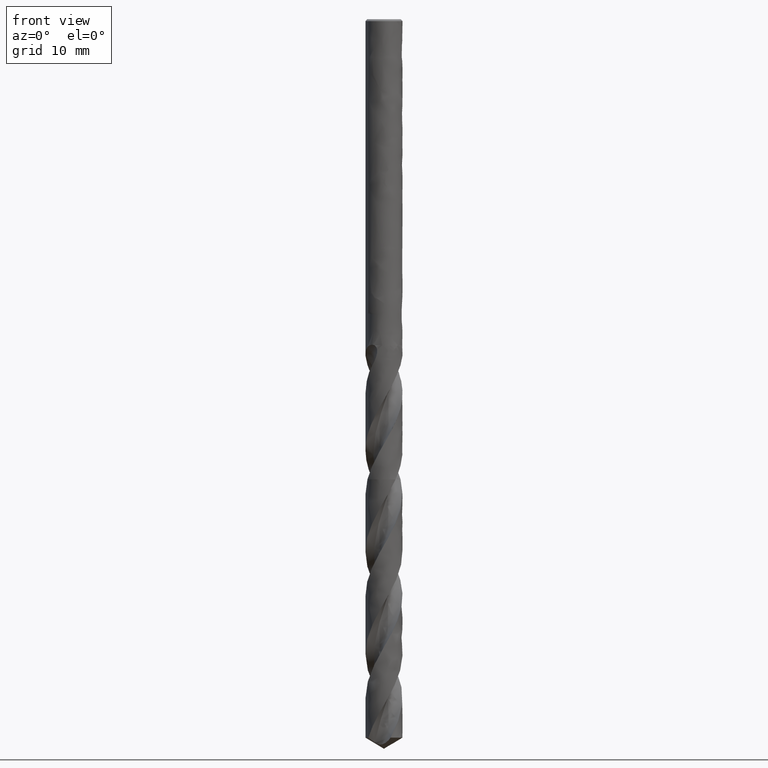
[diagram: clean part render]
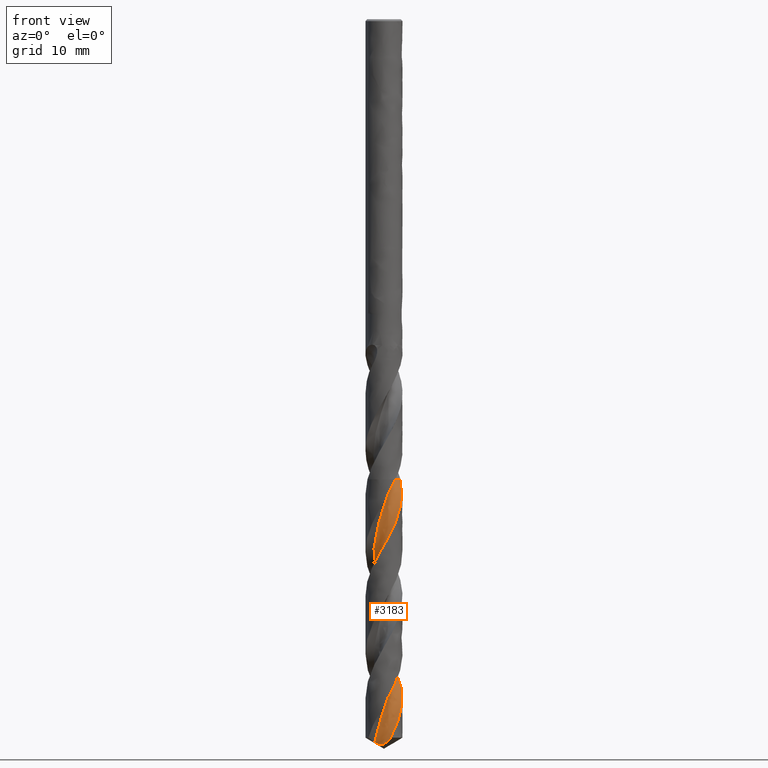
[diagram: same view with one face highlighted and labeled with its STEP entity id]
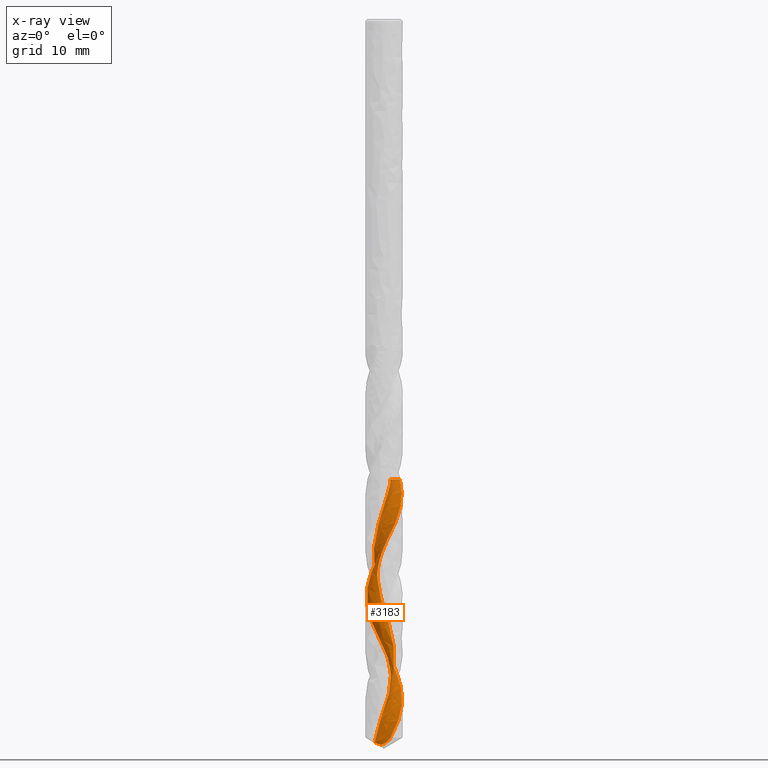
[diagram: x-ray of the same camera — body ghosted, the highlighted face saturated]
A machine part, front view. The second image highlights one B-rep face of the part: STEP entity #3183.
The next image is the same camera in x-ray: the body ghosted, the highlighted face saturated — about 0% of this face is hidden behind the body in this view.
In plain terms, the highlighted face is a freeform B-spline surface patch.
Its self-contained STEP definition (entity closure, byte-faithful):
#2402 = VERTEX_POINT('', #2403);
#2403 = CARTESIAN_POINT('', (1.40092356684688, 0.725806815283884, -41.));
#2497 = VERTEX_POINT('', #2498);
#2498 = CARTESIAN_POINT('', (0.686757036045981, -0.639588430512679, -41.));
#2504 = EDGE_CURVE('', #2497, #2402, #2505, .T.);
#2505 = B_SPLINE_CURVE_WITH_KNOTS('', 3, (#2506, #2507, #2508, #2509, #2510, #2511, #2512, #2513, #2514, #2515, #2516, #2517, #2518, #2519, #2520, #2521, #2522, #2523, #2524, #2525, #2526, #2527, #2528, #2529, #2530, #2531, #2532, #2533, #2534, #2535, #2536, #2537, #2538, #2539, #2540, #2541, #2542, #2543, #2544, #2545, #2546, #2547, #2548, #2549, #2550, #2551), .UNSPECIFIED., .F., .U., (4, 3, 3, 3, 3, 3, 3, 3, 3, 3, 3, 3, 3, 3, 3, 4), (0., 0.13250363333154, 0.264662383324232, 0.396488746283834, 0.527991385736292, 0.659175525078815, 0.790043184200832, 0.877254789143766, 0.903163024382915, 1.0356640318367, 1.16782026451807, 1.29964418828105, 1.43114443978513, 1.56232621786373, 1.69319151908511, 1.80431495269448), .UNSPECIFIED.);
#2506 = CARTESIAN_POINT('', (0.686757036045978, -0.639588430512683, -41.));
#2507 = CARTESIAN_POINT('', (0.6664389980016, -0.60037135824349, -41.));
#2508 = CARTESIAN_POINT('', (0.648846925874556, -0.559619036275445, -41.));
#2509 = CARTESIAN_POINT('', (0.634241715901367, -0.517935834995085, -41.));
#2510 = CARTESIAN_POINT('', (0.619674520686365, -0.476361127657647, -41.));
#2511 = CARTESIAN_POINT('', (0.608006853660955, -0.433655689550685, -41.));
#2512 = CARTESIAN_POINT('', (0.599410853905625, -0.390449575922727, -41.));
#2513 = CARTESIAN_POINT('', (0.590836473595509, -0.347352128213, -41.));
#2514 = CARTESIAN_POINT('', (0.585276246224857, -0.303545391048654, -41.));
#2515 = CARTESIAN_POINT('', (0.582811794077059, -0.259672432721156, -41.));
#2516 = CARTESIAN_POINT('', (0.580353393837806, -0.215907212387938, -41.));
#2517 = CARTESIAN_POINT('', (0.580963524084044, -0.171862738341402, -41.));
#2518 = CARTESIAN_POINT('', (0.584633272081576, -0.12818240876176, -41.));
#2519 = CARTESIAN_POINT('', (0.588294131929443, -0.0846078731785824, -41.));
#2520 = CARTESIAN_POINT('', (0.595017495500868, -0.0411843098364818, -41.));
#2521 = CARTESIAN_POINT('', (0.604705621884309, 0.00145701112445773, -41.));
#2522 = CARTESIAN_POINT('', (0.614370375774783, 0.0439954603912428, -41.));
#2523 = CARTESIAN_POINT('', (0.627032199045684, 0.0859608386907927, -41.));
#2524 = CARTESIAN_POINT('', (0.642507904278067, 0.126746003657318, -41.));
#2525 = CARTESIAN_POINT('', (0.652821079435281, 0.153925672938913, -41.));
#2526 = CARTESIAN_POINT('', (0.664408150185179, 0.180655332614537, -41.));
#2527 = CARTESIAN_POINT('', (0.677194517954621, 0.206762894801475, -41.));
#2528 = CARTESIAN_POINT('', (0.680993005830652, 0.214518753246031, -41.));
#2529 = CARTESIAN_POINT('', (0.684898696263466, 0.222223020417049, -41.));
#2530 = CARTESIAN_POINT('', (0.688909366867293, 0.229871312492012, -41.));
#2531 = CARTESIAN_POINT('', (0.709420910423507, 0.268986535735856, -41.));
#2532 = CARTESIAN_POINT('', (0.732752069434392, 0.306746447079988, -41.));
#2533 = CARTESIAN_POINT('', (0.758556848773595, 0.342591076687912, -41.));
#2534 = CARTESIAN_POINT('', (0.784294482684286, 0.378342436635079, -41.));
#2535 = CARTESIAN_POINT('', (0.812619545222353, 0.412364551985703, -41.));
#2536 = CARTESIAN_POINT('', (0.843114158062266, 0.444155496060021, -41.));
#2537 = CARTESIAN_POINT('', (0.873532091720244, 0.475866501307197, -41.));
#2538 = CARTESIAN_POINT('', (0.906257642246221, 0.505512948407963, -41.));
#2539 = CARTESIAN_POINT('', (0.940810427185301, 0.532659653452246, -41.));
#2540 = CARTESIAN_POINT('', (0.975278373366486, 0.559739704166322, -41.));
#2541 = CARTESIAN_POINT('', (1.01173257623434, 0.584464345572403, -41.));
#2542 = CARTESIAN_POINT('', (1.04964053495671, 0.606472415140845, -41.));
#2543 = CARTESIAN_POINT('', (1.08745668642146, 0.62842718454276, -41.));
#2544 = CARTESIAN_POINT('', (1.12690298509467, 0.647785097926169, -41.));
#2545 = CARTESIAN_POINT('', (1.16740600089809, 0.664264749679903, -41.));
#2546 = CARTESIAN_POINT('', (1.20781130292343, 0.680704644171069, -41.));
#2547 = CARTESIAN_POINT('', (1.24946328220229, 0.694359586887626, -41.));
#2548 = CARTESIAN_POINT('', (1.2917593521671, 0.705032029352786, -41.));
#2549 = CARTESIAN_POINT('', (1.3276747894817, 0.714094465618614, -41.));
#2550 = CARTESIAN_POINT('', (1.36418995831475, 0.721043581846579, -41.));
#2551 = CARTESIAN_POINT('', (1.40092356684688, 0.725806815283884, -41.));
#2828 = EDGE_CURVE('', #2829, #2402, #2831, .T.);
#2829 = VERTEX_POINT('', #2830);
#2830 = CARTESIAN_POINT('', (0.608658598867197, -1.53363447732014, -63.9594711048135));
#2831 = (
   BOUNDED_CURVE ()
   B_SPLINE_CURVE (3, (#2832, #2833, #2834, #2835, #2836, #2837, #2838, #2839, #2840, #2841, #2842, #2843, #2844, #2845, #2846, #2847, #2848, #2849, #2850, #2851, #2852, #2853, #2854, #2855, #2856, #2857, #2858, #2859, #2860, #2861, #2862, #2863, #2864, #2865, #2866, #2867, #2868, #2869, #2870, #2871, #2872, #2873, #2874, #2875, #2876, #2877, #2878, #2879, #2880, #2881, #2882, #2883, #2884, #2885, #2886, #2887, #2888, #2889, #2890, #2891, #2892, #2893, #2894, #2895, #2896, #2897, #2898, #2899, #2900, #2901, #2902, #2903, #2904, #2905, #2906, #2907, #2908, #2909, #2910, #2911), .UNSPECIFIED., .F., .U.)
   B_SPLINE_CURVE_WITH_KNOTS ((4, 1, 1, 1, 1, 1, 1, 1, 1, 1, 1, 1, 1, 1, 1, 1, 1, 1, 1, 1, 1, 1, 1, 1, 1, 1, 1, 1, 1, 1, 1, 1, 1, 1, 1, 1, 1, 1, 1, 1, 1, 1, 1, 1, 1, 1, 1, 1, 1, 1, 1, 1, 1, 1, 1, 1, 1, 1, 1, 1, 1, 1, 1, 1, 1, 1, 1, 1, 1, 1, 1, 1, 1, 1, 1, 1, 1, 4), (1.09052889518658, 1.21176470588235, 1.51470588235294, 1.81764705882353, 2.12058823529412, 2.42352941176471, 2.72647058823529, 3.02941176470588, 3.33235294117647, 3.63529411764706, 3.93823529411765, 4.24117647058824, 4.54411764705882, 4.84705882352941, 5.15, 5.45294117647059, 5.75588235294118, 6.05882352941176, 6.36176470588235, 6.66470588235294, 6.96764705882353, 7.27058823529412, 7.57352941176471, 7.87647058823529, 8.17941176470588, 8.48235294117647, 8.78529411764706, 9.08823529411765, 9.39117647058823, 9.69411764705882, 9.99705882352941, 10.3, 10.6029411764706, 10.9058823529412, 11.2088235294118, 11.5117647058824, 11.8147058823529, 12.1176470588235, 12.4205882352941, 12.7235294117647, 13.0264705882353, 13.3294117647059, 13.6323529411765, 13.9352941176471, 14.2382352941176, 14.5411764705882, 14.8441176470588, 15.1470588235294, 15.45, 15.7529411764706, 16.0558823529412, 16.3588235294118, 16.6617647058824, 16.9647058823529, 17.2676470588235, 17.5705882352941, 17.8735294117647, 18.1764705882353, 18.4794117647059, 18.7823529411765, 19.0852941176471, 19.3882352941176, 19.6911764705882, 19.9941176470588, 20.2970588235294, 20.6, 20.9029411764706, 21.2058823529412, 21.5088235294118, 21.8117647058824, 22.1147058823529, 22.4176470588235, 22.7205882352941, 23.0235294117647, 23.3264705882353, 23.6294117647059, 23.9323529411765, 24.05), .UNSPECIFIED.)
   CURVE ()
   GEOMETRIC_REPRESENTATION_ITEM ()
   RATIONAL_B_SPLINE_CURVE ((1., 1., 1., 1., 1., 1., 1., 1., 1., 1., 1., 1., 1., 1., 1., 1., 1., 1., 1., 1., 1., 1., 1., 1., 1., 1., 1., 1., 1., 1., 1., 1., 1., 1., 1., 1., 1., 1., 1., 1., 1., 1., 1., 1., 1., 1., 1., 1., 1., 1., 1., 1., 1., 1., 1., 1., 1., 1., 1., 1., 1., 1., 1., 1., 1., 1., 1., 1., 1., 1., 1., 1., 1., 1., 1., 1., 1., 1., 1., 1.))
   REPRESENTATION_ITEM ('')
);
#2832 = CARTESIAN_POINT('', (0.608658598867227, -1.53363447732013, -63.9594711048134));
#2833 = CARTESIAN_POINT('', (0.629912878573348, -1.52456517047977, -63.9190591679148));
#2834 = CARTESIAN_POINT('', (0.703573658729445, -1.49129656708161, -63.7776668388594));
#2835 = CARTESIAN_POINT('', (0.825242829623747, -1.42523032569429, -63.5352941176471));
#2836 = CARTESIAN_POINT('', (0.967501736009508, -1.32750058861451, -63.2323529411765));
#2837 = CARTESIAN_POINT('', (1.09845505173461, -1.21575508529345, -62.9294117647059));
#2838 = CARTESIAN_POINT('', (1.21674168217711, -1.0912764516103, -62.6264705882353));
#2839 = CARTESIAN_POINT('', (1.32114358060172, -0.955477283924404, -62.3235294117647));
#2840 = CARTESIAN_POINT('', (1.41059795342671, -0.809884512228621, -62.0205882352941));
#2841 = CARTESIAN_POINT('', (1.48420773805926, -0.65612254343618, -61.7176470588235));
#2842 = CARTESIAN_POINT('', (1.54125028580988, -0.495895501784025, -61.4147058823529));
#2843 = CARTESIAN_POINT('', (1.58118416149857, -0.330968717888546, -61.1117647058824));
#2844 = CARTESIAN_POINT('', (1.60365400197271, -0.163149673725623, -60.8088235294118));
#2845 = CARTESIAN_POINT('', (1.60849339322038, 0.00573139798293483, -60.5058823529412));
#2846 = CARTESIAN_POINT('', (1.5957257471427, 0.173841055617137, -60.2029411764706));
#2847 = CARTESIAN_POINT('', (1.56556317951041, 0.339362128072504, -59.9));
#2848 = CARTESIAN_POINT('', (1.51840341120398, 0.500512929630408, -59.5970588235294));
#2849 = CARTESIAN_POINT('', (1.45482473498897, 0.655566012094053, -59.2941176470588));
#2850 = CARTESIAN_POINT('', (1.37557910969623, 0.802866261815229, -58.9911764705882));
#2851 = CARTESIAN_POINT('', (1.28158346254682, 0.940848156988965, -58.6882352941176));
#2852 = CARTESIAN_POINT('', (1.17390929830467, 1.06805201016146, -58.3852941176471));
#2853 = CARTESIAN_POINT('', (1.05377073078365, 1.18313903218189, -58.0823529411765));
#2854 = CARTESIAN_POINT('', (0.922511067817677, 1.28490506670557, -57.7794117647059));
#2855 = CARTESIAN_POINT('', (0.781588094977122, 1.37229285868665, -57.4764705882353));
#2856 = CARTESIAN_POINT('', (0.632558215948033, 1.44440273593257, -57.1735294117647));
#2857 = CARTESIAN_POINT('', (0.477059618467307, 1.50050159956568, -56.8705882352941));
#2858 = CARTESIAN_POINT('', (0.316794643926664, 1.54003013697815, -56.5676470588235));
#2859 = CARTESIAN_POINT('', (0.153511546139599, 1.56260818939193, -56.2647058823529));
#2860 = CARTESIAN_POINT('', (-0.0110141697551566, 1.56803822525949, -55.9617647058823));
#2861 = CARTESIAN_POINT('', (-0.174998633746833, 1.55630689026979, -55.6588235294118));
#2862 = CARTESIAN_POINT('', (-0.336668526694352, 1.52758462446278, -55.3558823529412));
#2863 = CARTESIAN_POINT('', (-0.494279829704259, 1.48222335670818, -55.0529411764706));
#2864 = CARTESIAN_POINT('', (-0.646136213873181, 1.42075230637501, -54.75));
#2865 = CARTESIAN_POINT('', (-0.790606881435686, 1.34387194121502, -54.4470588235294));
#2866 = CARTESIAN_POINT('', (-0.926143675552272, 1.2524461591173, -54.1441176470588));
#2867 = CARTESIAN_POINT('', (-1.05129728397915, 1.14749277928221, -53.8411764705882));
#2868 = CARTESIAN_POINT('', (-1.16473237159461, 1.03017244533571, -53.5382352941176));
#2869 = CARTESIAN_POINT('', (-1.26524148811459, 0.90177605879745, -53.2352941176471));
#2870 = CARTESIAN_POINT('', (-1.35175761019502, 0.763710875973336, -52.9323529411765));
#2871 = CARTESIAN_POINT('', (-1.42336519135802, 0.617485414626923, -52.6294117647059));
#2872 = CARTESIAN_POINT('', (-1.47930960865025, 0.464693328566166, -52.3264705882353));
#2873 = CARTESIAN_POINT('', (-1.51900491148743, 0.306996418451709, -52.0235294117647));
#2874 = CARTESIAN_POINT('', (-1.54203979559421, 0.14610695559427, -51.7205882352941));
#2875 = CARTESIAN_POINT('', (-1.54818174313981, -0.0162304978173631, -51.4176470588235));
#2876 = CARTESIAN_POINT('', (-1.53737928891538, -0.17825758379124, -51.114705882353));
#2877 = CARTESIAN_POINT('', (-1.50976239151458, -0.338220767710754, -50.8117647058823));
#2878 = CARTESIAN_POINT('', (-1.46564090777591, -0.494389889403074, -50.5088235294118));
#2879 = CARTESIAN_POINT('', (-1.40550118803259, -0.645076454793255, -50.2058823529412));
#2880 = CARTESIAN_POINT('', (-1.33000082880595, -0.788651479662786, -49.9029411764706));
#2881 = CARTESIAN_POINT('', (-1.23996163828225, -0.923562701736828, -49.6));
#2882 = CARTESIAN_POINT('', (-1.13636088804834, -1.04835098386431, -49.2970588235294));
#2883 = CARTESIAN_POINT('', (-1.0203209419506, -1.16166573936448, -48.9941176470588));
#2884 = CARTESIAN_POINT('', (-0.89309736941399, -1.26227922060843, -48.6911764705882));
#2885 = CARTESIAN_POINT('', (-0.756065665952149, -1.34909952348706, -48.3882352941176));
#2886 = CARTESIAN_POINT('', (-0.610706717764906, -1.42118217347268, -48.0852941176471));
#2887 = CARTESIAN_POINT('', (-0.4585911601161, -1.47774017338288, -47.7823529411765));
#2888 = CARTESIAN_POINT('', (-0.301362790487725, -1.51815240856004, -47.4794117647059));
#2889 = CARTESIAN_POINT('', (-0.140721207202711, -1.54197032183642, -47.1764705882353));
#2890 = CARTESIAN_POINT('', (0.0215961477965334, -1.5489227881989, -46.8735294117647));
#2891 = CARTESIAN_POINT('', (0.183832357114896, -1.53891913732861, -46.5705882352941));
#2892 = CARTESIAN_POINT('', (0.344229617750689, -1.51205029098935, -46.2676470588235));
#2893 = CARTESIAN_POINT('', (0.501047860879038, -1.46858800139056, -45.9647058823529));
#2894 = CARTESIAN_POINT('', (0.652583209271948, -1.40898219596902, -45.6617647058823));
#2895 = CARTESIAN_POINT('', (0.797186081422596, -1.33385645332654, -45.3588235294118));
#2896 = CARTESIAN_POINT('', (0.933278754725941, -1.2440016541408, -45.0558823529412));
#2897 = CARTESIAN_POINT('', (1.05937220524114, -1.1403678695433, -44.7529411764706));
#2898 = CARTESIAN_POINT('', (1.17408204857583, -1.02405456754751, -44.45));
#2899 = CARTESIAN_POINT('', (1.27614341522472, -0.896299235432833, -44.1470588235294));
#2900 = CARTESIAN_POINT('', (1.36442460418209, -0.758464532371181, -43.8441176470588));
#2901 = CARTESIAN_POINT('', (1.43793937073226, -0.612024101860306, -43.5411764705882));
#2902 = CARTESIAN_POINT('', (1.49585771788849, -0.458547187545638, -43.2382352941176));
#2903 = CARTESIAN_POINT('', (1.53751507587064, -0.2996822086288, -42.9352941176471));
#2904 = CARTESIAN_POINT('', (1.56241977014243, -0.137139462145337, -42.6323529411765));
#2905 = CARTESIAN_POINT('', (1.5702586957146, 0.0273268711675055, -42.3294117647059));
#2906 = CARTESIAN_POINT('', (1.5609011334954, 0.191937233001409, -42.0264705882353));
#2907 = CARTESIAN_POINT('', (1.53440066325868, 0.354905515332822, -41.7235294117647));
#2908 = CARTESIAN_POINT('', (1.49099514711929, 0.514458015766097, -41.4205882352941));
#2909 = CARTESIAN_POINT('', (1.4433154350381, 0.637373872889908, -41.1794117647059));
#2910 = CARTESIAN_POINT('', (1.41049569755023, 0.706624160441825, -41.0392156862745));
#2911 = CARTESIAN_POINT('', (1.40092356684688, 0.725806815283883, -41.));
#3183 = ADVANCED_FACE('', (#3184), #3374, .T.);
#3184 = FACE_OUTER_BOUND('', #3185, .T.);
#3185 = EDGE_LOOP('', (#3186, #3187, #3273, #3366, #3373));
#3186 = ORIENTED_EDGE('', *, *, #2504, .F.);
#3187 = ORIENTED_EDGE('', *, *, #3188, .F.);
#3188 = EDGE_CURVE('', #3189, #2497, #3191, .T.);
#3189 = VERTEX_POINT('', #3190);
#3190 = CARTESIAN_POINT('', (-0.832035560667156, -0.527891683681897, -64.4079303477547));
#3191 = B_SPLINE_CURVE_WITH_KNOTS('', 3, (#3192, #3193, #3194, #3195, #3196, #3197, #3198, #3199, #3200, #3201, #3202, #3203, #3204, #3205, #3206, #3207, #3208, #3209, #3210, #3211, #3212, #3213, #3214, #3215, #3216, #3217, #3218, #3219, #3220, #3221, #3222, #3223, #3224, #3225, #3226, #3227, #3228, #3229, #3230, #3231, #3232, #3233, #3234, #3235, #3236, #3237, #3238, #3239, #3240, #3241, #3242, #3243, #3244, #3245, #3246, #3247, #3248, #3249, #3250, #3251, #3252, #3253, #3254, #3255, #3256, #3257, #3258, #3259, #3260, #3261, #3262, #3263, #3264, #3265, #3266, #3267, #3268, #3269, #3270, #3271, #3272), .UNSPECIFIED., .F., .U., (4, 1, 1, 1, 1, 1, 1, 1, 1, 1, 1, 1, 1, 1, 1, 1, 1, 1, 1, 1, 1, 1, 1, 1, 1, 1, 1, 1, 1, 1, 1, 1, 1, 1, 1, 1, 1, 1, 1, 1, 1, 1, 1, 1, 1, 1, 1, 1, 1, 1, 1, 1, 1, 1, 1, 1, 1, 1, 1, 1, 1, 1, 1, 1, 1, 1, 1, 1, 1, 1, 1, 1, 1, 1, 1, 1, 1, 1, 4), (0.642069652245277, 0.908823529411765, 1.21176470588235, 1.51470588235294, 1.81764705882353, 2.12058823529412, 2.42352941176471, 2.72647058823529, 3.02941176470588, 3.33235294117647, 3.63529411764706, 3.93823529411765, 4.24117647058824, 4.54411764705882, 4.84705882352941, 5.15, 5.45294117647059, 5.75588235294118, 6.05882352941176, 6.36176470588235, 6.66470588235294, 6.96764705882353, 7.27058823529412, 7.57352941176471, 7.87647058823529, 8.17941176470588, 8.48235294117647, 8.78529411764706, 9.08823529411765, 9.39117647058823, 9.69411764705882, 9.99705882352941, 10.3, 10.6029411764706, 10.9058823529412, 11.2088235294118, 11.5117647058824, 11.8147058823529, 12.1176470588235, 12.4205882352941, 12.7235294117647, 13.0264705882353, 13.3294117647059, 13.6323529411765, 13.9352941176471, 14.2382352941176, 14.5411764705882, 14.8441176470588, 15.1470588235294, 15.45, 15.7529411764706, 16.0558823529412, 16.3588235294118, 16.6617647058824, 16.9647058823529, 17.2676470588235, 17.5705882352941, 17.8735294117647, 18.1764705882353, 18.4794117647059, 18.7823529411765, 19.0852941176471, 19.3882352941176, 19.6911764705882, 19.9941176470588, 20.2970588235294, 20.6, 20.9029411764706, 21.2058823529412, 21.5088235294118, 21.8117647058824, 22.1147058823529, 22.4176470588235, 22.7205882352941, 23.0235294117647, 23.3264705882353, 23.6294117647059, 23.9323529411765, 24.05), .UNSPECIFIED.);
#3192 = CARTESIAN_POINT('', (-0.832035560667155, -0.527891683681899, -64.4079303477547));
#3193 = CARTESIAN_POINT('', (-0.815102472536657, -0.553096713906443, -64.3190123886992));
#3194 = CARTESIAN_POINT('', (-0.776504725213974, -0.605195568250211, -64.1291140374869));
#3195 = CARTESIAN_POINT('', (-0.709988163588591, -0.678647559721039, -63.8382352941176));
#3196 = CARTESIAN_POINT('', (-0.633317048264229, -0.747319065263701, -63.5352941176471));
#3197 = CARTESIAN_POINT('', (-0.550120388098667, -0.80746172475077, -63.2323529411765));
#3198 = CARTESIAN_POINT('', (-0.461333689924489, -0.858468223145976, -62.9294117647059));
#3199 = CARTESIAN_POINT('', (-0.367947661715201, -0.899832648653556, -62.6264705882353));
#3200 = CARTESIAN_POINT('', (-0.270997201313263, -0.931155212140633, -62.3235294117647));
#3201 = CARTESIAN_POINT('', (-0.17155020174808, -0.952145958743778, -62.0205882352941));
#3202 = CARTESIAN_POINT('', (-0.0706960131108228, -0.962627265853855, -61.7176470588235));
#3203 = CARTESIAN_POINT('', (0.0304662423512057, -0.962535155070363, -61.4147058823529));
#3204 = CARTESIAN_POINT('', (0.130839399357982, -0.951919398920985, -61.1117647058824));
#3205 = CARTESIAN_POINT('', (0.229339895275232, -0.930942431434292, -60.8088235294118));
#3206 = CARTESIAN_POINT('', (0.324909213101778, -0.899877079678148, -60.5058823529412));
#3207 = CARTESIAN_POINT('', (0.416525003503301, -0.859103146528284, -60.2029411764706));
#3208 = CARTESIAN_POINT('', (0.503211772109484, -0.809102886254895, -59.9));
#3209 = CARTESIAN_POINT('', (0.584051023279704, -0.750455425728608, -59.5970588235294));
#3210 = CARTESIAN_POINT('', (0.658190757767658, -0.683830194551762, -59.2941176470588));
#3211 = CARTESIAN_POINT('', (0.724854228897063, -0.609979437247432, -58.9911764705882));
#3212 = CARTESIAN_POINT('', (0.78334786997687, -0.52972988965835, -58.6882352941176));
#3213 = CARTESIAN_POINT('', (0.833068314633, -0.443973709845628, -58.385294117647));
#3214 = CARTESIAN_POINT('', (0.87350844142385, -0.353658760955192, -58.0823529411765));
#3215 = CARTESIAN_POINT('', (0.904262384436406, -0.259778349673144, -57.7794117647059));
#3216 = CARTESIAN_POINT('', (0.925029462422418, -0.163360528965025, -57.4764705882353));
#3217 = CARTESIAN_POINT('', (0.935616990318174, -0.0654570777441229, -57.1735294117647));
#3218 = CARTESIAN_POINT('', (0.935941948582753, 0.0328677270921337, -56.8705882352941));
#3219 = CARTESIAN_POINT('', (0.926031497571118, 0.130548429202104, -56.5676470588235));
#3220 = CARTESIAN_POINT('', (0.906022336012281, 0.226529684431048, -56.2647058823529));
#3221 = CARTESIAN_POINT('', (0.876158914471101, 0.319777408803646, -55.9617647058824));
#3222 = CARTESIAN_POINT('', (0.836790526318324, 0.409289668074706, -55.6588235294118));
#3223 = CARTESIAN_POINT('', (0.788367310102798, 0.494107197108032, -55.3558823529412));
#3224 = CARTESIAN_POINT('', (0.7314352082012, 0.573323441536785, -55.0529411764706));
#3225 = CARTESIAN_POINT('', (0.666629937107453, 0.646094019406432, -54.75));
#3226 = CARTESIAN_POINT('', (0.59467003461468, 0.711645506756397, -54.4470588235294));
#3227 = CARTESIAN_POINT('', (0.516349058342131, 0.769283458293022, -54.1441176470588));
#3228 = CARTESIAN_POINT('', (0.432527018479858, 0.818399582369722, -53.8411764705882));
#3229 = CARTESIAN_POINT('', (0.344121135185071, 0.858477998337077, -53.5382352941177));
#3230 = CARTESIAN_POINT('', (0.252096017694694, 0.889100513866297, -53.2352941176471));
#3231 = CARTESIAN_POINT('', (0.157453367856412, 0.909950869987384, -52.9323529411765));
#3232 = CARTESIAN_POINT('', (0.061221315373451, 0.920817912216738, -52.6294117647059));
#3233 = CARTESIAN_POINT('', (-0.0355565044358196, 0.921597657171606, -52.3264705882353));
#3234 = CARTESIAN_POINT('', (-0.131832017174872, 0.912294235371201, -52.0235294117647));
#3235 = CARTESIAN_POINT('', (-0.22656380576526, 0.893019702394396, -51.7205882352941));
#3236 = CARTESIAN_POINT('', (-0.318728122164456, 0.863992722088647, -51.4176470588235));
#3237 = CARTESIAN_POINT('', (-0.407329700914017, 0.825536136990578, -51.1147058823529));
#3238 = CARTESIAN_POINT('', (-0.491412263207034, 0.778073452413073, -50.8117647058824));
#3239 = CARTESIAN_POINT('', (-0.570068603454942, 0.72212427166596, -50.5088235294118));
#3240 = CARTESIAN_POINT('', (-0.642450154700786, 0.658298730499851, -50.2058823529412));
#3241 = CARTESIAN_POINT('', (-0.707775934625292, 0.587290988991518, -49.9029411764706));
#3242 = CARTESIAN_POINT('', (-0.765340780268814, 0.509871848625512, -49.6));
#3243 = CARTESIAN_POINT('', (-0.814522786882754, 0.426880571177645, -49.2970588235294));
#3244 = CARTESIAN_POINT('', (-0.854789874456493, 0.339215984084743, -48.9941176470588));
#3245 = CARTESIAN_POINT('', (-0.885705414359202, 0.247826964213466, -48.6911764705882));
#3246 = CARTESIAN_POINT('', (-0.906932858103047, 0.153702398247581, -48.3882352941176));
#3247 = CARTESIAN_POINT('', (-0.918239320380848, 0.0578607232369036, -48.0852941176471));
#3248 = CARTESIAN_POINT('', (-0.919498079157634, -0.03866084486087, -47.7823529411765));
#3249 = CARTESIAN_POINT('', (-0.910689966597523, -0.134817283603671, -47.4794117647059));
#3250 = CARTESIAN_POINT('', (-0.891903635876957, -0.229566824311836, -47.1764705882353));
#3251 = CARTESIAN_POINT('', (-0.86333470036203, -0.321881986026516, -46.8735294117647));
#3252 = CARTESIAN_POINT('', (-0.825283753099165, -0.410760469240688, -46.5705882352941));
#3253 = CARTESIAN_POINT('', (-0.778153285972205, -0.495235796777131, -46.2676470588235));
#3254 = CARTESIAN_POINT('', (-0.722443539102597, -0.574387591631192, -45.9647058823529));
#3255 = CARTESIAN_POINT('', (-0.658747322002237, -0.647351385146845, -45.6617647058823));
#3256 = CARTESIAN_POINT('', (-0.58774385852261, -0.713327853519674, -45.3588235294118));
#3257 = CARTESIAN_POINT('', (-0.510191717674605, -0.771591386276218, -45.0558823529412));
#3258 = CARTESIAN_POINT('', (-0.426920901820868, -0.821497897012408, -44.7529411764706));
#3259 = CARTESIAN_POINT('', (-0.338824172472718, -0.862491794221096, -44.45));
#3260 = CARTESIAN_POINT('', (-0.246847701868393, -0.89411203842819, -44.1470588235294));
#3261 = CARTESIAN_POINT('', (-0.151981145588386, -0.915997221007914, -43.8441176470588));
#3262 = CARTESIAN_POINT('', (-0.0552472376044393, -0.927889609872266, -43.5411764705882));
#3263 = CARTESIAN_POINT('', (0.0423089857022422, -0.929638117632881, -43.2382352941176));
#3264 = CARTESIAN_POINT('', (0.139631221934749, -0.921200158714312, -42.9352941176471));
#3265 = CARTESIAN_POINT('', (0.235663085884332, -0.902642373150354, -42.6323529411765));
#3266 = CARTESIAN_POINT('', (0.329359324092657, -0.874140206309466, -42.3294117647059));
#3267 = CARTESIAN_POINT('', (0.419696944627639, -0.835976345458566, -42.0264705882353));
#3268 = CARTESIAN_POINT('', (0.50568614640233, -0.7885380257716, -41.7235294117647));
#3269 = CARTESIAN_POINT('', (0.586380934009322, -0.732313230004398, -41.4205882352941));
#3270 = CARTESIAN_POINT('', (0.645698279371963, -0.6810215035245, -41.1794117647059));
#3271 = CARTESIAN_POINT('', (0.677925990568024, -0.648786943941262, -41.0392156862745));
#3272 = CARTESIAN_POINT('', (0.686757036045981, -0.639588430512679, -41.));
#3273 = ORIENTED_EDGE('', *, *, #3274, .T.);
#3274 = EDGE_CURVE('', #3189, #3275, #3277, .T.);
#3275 = VERTEX_POINT('', #3276);
#3276 = CARTESIAN_POINT('', (0.582723273570032, -1.54367535007845, -64.0085799786045));
#3277 = B_SPLINE_CURVE_WITH_KNOTS('', 3, (#3278, #3279, #3280, #3281, #3282, #3283, #3284, #3285, #3286, #3287, #3288, #3289, #3290, #3291, #3292, #3293, #3294, #3295, #3296, #3297, #3298, #3299, #3300, #3301, #3302, #3303, #3304, #3305, #3306, #3307, #3308, #3309, #3310, #3311, #3312, #3313, #3314, #3315, #3316, #3317, #3318, #3319, #3320, #3321, #3322, #3323, #3324, #3325, #3326, #3327, #3328, #3329, #3330, #3331, #3332, #3333, #3334, #3335, #3336, #3337, #3338, #3339, #3340, #3341, #3342, #3343, #3344, #3345, #3346, #3347, #3348, #3349, #3350, #3351, #3352, #3353, #3354, #3355, #3356, #3357, #3358, #3359, #3360, #3361, #3362, #3363, #3364, #3365), .UNSPECIFIED., .F., .U., (4, 3, 3, 3, 3, 3, 3, 3, 3, 3, 3, 3, 3, 3, 3, 3, 3, 3, 3, 3, 3, 3, 3, 3, 3, 3, 3, 3, 3, 4), (0., 0.0876269781853507, 0.17517438555109, 0.262571359024206, 0.3207627779458, 0.378869822719652, 0.436894675712004, 0.494860817556152, 0.552814870504901, 0.610814308158135, 0.668903709627519, 0.727096777294206, 0.78537778535938, 0.843716538724383, 0.902082600674919, 0.960452232551739, 0.97775982023908, 0.995089709760393, 1.08386502875805, 1.17227184885496, 1.26039846469585, 1.34830891463682, 1.43604815211603, 1.52364732823186, 1.61112784925289, 1.69850420687605, 1.78578589696218, 1.91627479239723, 2.04648253200449, 2.10251696347501), .UNSPECIFIED.);
#3278 = CARTESIAN_POINT('', (-0.832035560667155, -0.527891683681899, -64.4079303477547));
#3279 = CARTESIAN_POINT('', (-0.809030318695292, -0.517818066748189, -64.4228449828458));
#3280 = CARTESIAN_POINT('', (-0.785309356489992, -0.509114594970561, -64.4376721763354));
#3281 = CARTESIAN_POINT('', (-0.761021357537368, -0.501943934596427, -64.4522269004099));
#3282 = CARTESIAN_POINT('', (-0.736755413618746, -0.494779785633903, -64.4667684078776));
#3283 = CARTESIAN_POINT('', (-0.711844773699122, -0.489123589256418, -64.4810862494303));
#3284 = CARTESIAN_POINT('', (-0.686464343789686, -0.485130732796039, -64.4949248685432));
#3285 = CARTESIAN_POINT('', (-0.661127525415791, -0.481144737314849, -64.5087397085699));
#3286 = CARTESIAN_POINT('', (-0.635225401310829, -0.478803422848912, -64.5221305572589));
#3287 = CARTESIAN_POINT('', (-0.608972338061604, -0.478239168986719, -64.5347460484449));
#3288 = CARTESIAN_POINT('', (-0.591492293378126, -0.477863472534449, -64.5431458053624));
#3289 = CARTESIAN_POINT('', (-0.573814267072672, -0.478273642332211, -64.5512206464439));
#3290 = CARTESIAN_POINT('', (-0.556017797360149, -0.479495223688289, -64.5588392047718));
#3291 = CARTESIAN_POINT('', (-0.538247131485934, -0.480715033822979, -64.5664467166365));
#3292 = CARTESIAN_POINT('', (-0.5203165153873, -0.482747626509885, -64.5736163616779));
#3293 = CARTESIAN_POINT('', (-0.502324609342323, -0.485597367578489, -64.5801988408356));
#3294 = CARTESIAN_POINT('', (-0.484358152652346, -0.488443077719412, -64.5867720091481));
#3295 = CARTESIAN_POINT('', (-0.466282106584729, -0.492112291536457, -64.5927758007734));
#3296 = CARTESIAN_POINT('', (-0.448218810302895, -0.496575668706194, -64.5980572556431));
#3297 = CARTESIAN_POINT('', (-0.430173790962928, -0.501034529707687, -64.6033333665909));
#3298 = CARTESIAN_POINT('', (-0.412087179260075, -0.506300114702862, -64.6079022709554));
#3299 = CARTESIAN_POINT('', (-0.39410289539598, -0.512298196870405, -64.6116345698918));
#3300 = CARTESIAN_POINT('', (-0.37612236217182, -0.518295028132065, -64.6153660904537));
#3301 = CARTESIAN_POINT('', (-0.358186697239078, -0.525043150695808, -64.6182713945213));
#3302 = CARTESIAN_POINT('', (-0.340446928845822, -0.532422893859483, -64.6202778376681));
#3303 = CARTESIAN_POINT('', (-0.322693268168847, -0.539808416212802, -64.6222858520912));
#3304 = CARTESIAN_POINT('', (-0.305079653998237, -0.547848829802653, -64.6233996818333));
#3305 = CARTESIAN_POINT('', (-0.287739869583725, -0.556395882419894, -64.6236239535531));
#3306 = CARTESIAN_POINT('', (-0.270373189164006, -0.56495619250137, -64.6238485731442));
#3307 = CARTESIAN_POINT('', (-0.25323094882614, -0.574047836645223, -64.6231831758766));
#3308 = CARTESIAN_POINT('', (-0.236408991949249, -0.58352202080472, -64.6217024487592));
#3309 = CARTESIAN_POINT('', (-0.219557014651137, -0.593013112569039, -64.6202190791399));
#3310 = CARTESIAN_POINT('', (-0.202985561921739, -0.602909715168804, -64.6179163938558));
#3311 = CARTESIAN_POINT('', (-0.186747376132789, -0.61308590397241, -64.6149102583168));
#3312 = CARTESIAN_POINT('', (-0.170484651466853, -0.623277470863721, -64.6118995799556));
#3313 = CARTESIAN_POINT('', (-0.154525714075441, -0.633767750836438, -64.6081798346171));
#3314 = CARTESIAN_POINT('', (-0.138889033726846, -0.644463028126986, -64.6038770791269));
#3315 = CARTESIAN_POINT('', (-0.123236860427374, -0.655168902385817, -64.5995700604313));
#3316 = CARTESIAN_POINT('', (-0.107886339214847, -0.666094424236273, -64.5946743144376));
#3317 = CARTESIAN_POINT('', (-0.0928350741130813, -0.67717580703462, -64.5893059760727));
#3318 = CARTESIAN_POINT('', (-0.0777767634586308, -0.68826237706911, -64.5839351247688));
#3319 = CARTESIAN_POINT('', (-0.0630037310194432, -0.699515468674933, -64.5780866956308));
#3320 = CARTESIAN_POINT('', (-0.0485038130876764, -0.710894144219582, -64.5718586203707));
#3321 = CARTESIAN_POINT('', (-0.03400300827685, -0.722273515734314, -64.565630164174));
#3322 = CARTESIAN_POINT('', (-0.0197658573948333, -0.733786072055227, -64.5590180410638));
#3323 = CARTESIAN_POINT('', (-0.00577737810438129, -0.745406551793639, -64.5521011052816));
#3324 = CARTESIAN_POINT('', (-0.0016295562979499, -0.748852221495069, -64.5500501162873));
#3325 = CARTESIAN_POINT('', (0.00249679227588293, -0.752307777880244, -64.5479720242386));
#3326 = CARTESIAN_POINT('', (0.00660205273594317, -0.755772749628901, -64.5458685916582));
#3327 = CARTESIAN_POINT('', (0.010712603063017, -0.759242186195304, -64.5437624486826));
#3328 = CARTESIAN_POINT('', (0.014802156861781, -0.762721185943546, -64.5416308247613));
#3329 = CARTESIAN_POINT('', (0.0188710891499399, -0.76620934362427, -64.5394753669579));
#3330 = CARTESIAN_POINT('', (0.039714889764879, -0.784078027117004, -64.5284336662104));
#3331 = CARTESIAN_POINT('', (0.0600278818340305, -0.802192766067827, -64.5167667869396));
#3332 = CARTESIAN_POINT('', (0.079853189810899, -0.820519789978255, -64.5046527295084));
#3333 = CARTESIAN_POINT('', (0.0995962045977357, -0.838770739950102, -64.4925889565132));
#3334 = CARTESIAN_POINT('', (0.118866857634545, -0.857243522485313, -64.4800734637517));
#3335 = CARTESIAN_POINT('', (0.137693066619483, -0.875924804371082, -64.467228153752));
#3336 = CARTESIAN_POINT('', (0.156459606182124, -0.894546876179094, -64.4544235567938));
#3337 = CARTESIAN_POINT('', (0.174792120213386, -0.91338424014452, -64.4412849980455));
#3338 = CARTESIAN_POINT('', (0.192704431386665, -0.932433042776901, -64.4278978962103));
#3339 = CARTESIAN_POINT('', (0.210572805426677, -0.951435120574518, -64.4145436316161));
#3340 = CARTESIAN_POINT('', (0.228028847288079, -0.970654145634484, -64.4009369663728));
#3341 = CARTESIAN_POINT('', (0.245074513939205, -0.990090518794167, -64.3871396194855));
#3342 = CARTESIAN_POINT('', (0.262086982824291, -1.00948903810032, -64.3733691440079));
#3343 = CARTESIAN_POINT('', (0.278695611926184, -1.02910992042727, -64.3594042378672));
#3344 = CARTESIAN_POINT('', (0.294892406131241, -1.04895523049939, -64.3452911173995));
#3345 = CARTESIAN_POINT('', (0.31106334479955, -1.06876886077505, -64.3312005262238));
#3346 = CARTESIAN_POINT('', (0.326828299815562, -1.08881191012945, -64.3169579088508));
#3347 = CARTESIAN_POINT('', (0.34217062166241, -1.10908671355971, -64.3025993062723));
#3348 = CARTESIAN_POINT('', (0.357492161982149, -1.12933405430334, -64.2882601527505));
#3349 = CARTESIAN_POINT('', (0.372396615270328, -1.1498184350199, -64.2738009868895));
#3350 = CARTESIAN_POINT('', (0.386859411314444, -1.17054157025888, -64.2592512471965));
#3351 = CARTESIAN_POINT('', (0.401304986450854, -1.19124003037983, -64.2447188319354));
#3352 = CARTESIAN_POINT('', (0.415314382567852, -1.21218308385734, -64.2300914570341));
#3353 = CARTESIAN_POINT('', (0.428855383267069, -1.23337109313749, -64.2153944658955));
#3354 = CARTESIAN_POINT('', (0.4423817130276, -1.25453614636057, -64.2007133981484));
#3355 = CARTESIAN_POINT('', (0.45544521647377, -1.27595279658328, -64.1859578232517));
#3356 = CARTESIAN_POINT('', (0.468005943373168, -1.29761928750031, -64.1711508608345));
#3357 = CARTESIAN_POINT('', (0.486784628540085, -1.33001137872731, -64.1490139823134));
#3358 = CARTESIAN_POINT('', (0.504454807604931, -1.36298644095357, -64.126745995588));
#3359 = CARTESIAN_POINT('', (0.520848210523258, -1.39652504589973, -64.1044223242873));
#3360 = CARTESIAN_POINT('', (0.537206291656137, -1.42999138742297, -64.0821467523307));
#3361 = CARTESIAN_POINT('', (0.552310279561878, -1.46405444070074, -64.0597919785316));
#3362 = CARTESIAN_POINT('', (0.565947166906461, -1.49866936402712, -64.037439655924));
#3363 = CARTESIAN_POINT('', (0.57181575222778, -1.51356577152824, -64.0278204144477));
#3364 = CARTESIAN_POINT('', (0.577414404830105, -1.5285696769534, -64.0181980661916));
#3365 = CARTESIAN_POINT('', (0.58272327357003, -1.54367535007845, -64.0085799786045));
#3366 = ORIENTED_EDGE('', *, *, #3367, .F.);
#3367 = EDGE_CURVE('', #2829, #3275, #3368, .T.);
#3368 = CIRCLE('', #3369, 6.79473189977647);
#3369 = AXIS2_PLACEMENT_3D('', #3370, #3371, #3372);
#3370 = CARTESIAN_POINT('', (-1.85783417552136, 4.79757423097105, -63.9837872620976));
#3371 = DIRECTION('', (0.811436008107928, 0.314224117450809, -0.492782719622076));
#3372 = DIRECTION('', (0.363000749812843, -0.931781974873619, 0.00357867795858561));
#3373 = ORIENTED_EDGE('', *, *, #2828, .T.);
#3374 = (
   BOUNDED_SURFACE ()
   B_SPLINE_SURFACE (3, 2, ((#3375, #3376, #3377, #3378, #3379), (#3380, #3381, #3382, #3383, #3384), (#3385, #3386, #3387, #3388, #3389), (#3390, #3391, #3392, #3393, #3394), (#3395, #3396, #3397, #3398, #3399), (#3400, #3401, #3402, #3403, #3404), (#3405, #3406, #3407, #3408, #3409), (#3410, #3411, #3412, #3413, #3414), (#3415, #3416, #3417, #3418, #3419), (#3420, #3421, #3422, #3423, #3424), (#3425, #3426, #3427, #3428, #3429), (#3430, #3431, #3432, #3433, #3434), (#3435, #3436, #3437, #3438, #3439), (#3440, #3441, #3442, #3443, #3444), (#3445, #3446, #3447, #3448, #3449), (#3450, #3451, #3452, #3453, #3454), (#3455, #3456, #3457, #3458, #3459), (#3460, #3461, #3462, #3463, #3464), (#3465, #3466, #3467, #3468, #3469), (#3470, #3471, #3472, #3473, #3474), (#3475, #3476, #3477, #3478, #3479), (#3480, #3481, #3482, #3483, #3484), (#3485, #3486, #3487, #3488, #3489), (#3490, #3491, #3492, #3493, #3494), (#3495, #3496, #3497, #3498, #3499), (#3500, #3501, #3502, #3503, #3504), (#3505, #3506, #3507, #3508, #3509), (#3510, #3511, #3512, #3513, #3514), (#3515, #3516, #3517, #3518, #3519), (#3520, #3521, #3522, #3523, #3524), (#3525, #3526, #3527, #3528, #3529), (#3530, #3531, #3532, #3533, #3534), (#3535, #3536, #3537, #3538, #3539), (#3540, #3541, #3542, #3543, #3544), (#3545, #3546, #3547, #3548, #3549), (#3550, #3551, #3552, #3553, #3554), (#3555, #3556, #3557, #3558, #3559), (#3560, #3561, #3562, #3563, #3564), (#3565, #3566, #3567, #3568, #3569), (#3570, #3571, #3572, #3573, #3574), (#3575, #3576, #3577, #3578, #3579), (#3580, #3581, #3582, #3583, #3584), (#3585, #3586, #3587, #3588, #3589), (#3590, #3591, #3592, #3593, #3594), (#3595, #3596, #3597, #3598, #3599), (#3600, #3601, #3602, #3603, #3604), (#3605, #3606, #3607, #3608, #3609), (#3610, #3611, #3612, #3613, #3614), (#3615, #3616, #3617, #3618, #3619), (#3620, #3621, #3622, #3623, #3624), (#3625, #3626, #3627, #3628, #3629), (#3630, #3631, #3632, #3633, #3634), (#3635, #3636, #3637, #3638, #3639), (#3640, #3641, #3642, #3643, #3644), (#3645, #3646, #3647, #3648, #3649), (#3650, #3651, #3652, #3653, #3654), (#3655, #3656, #3657, #3658, #3659), (#3660, #3661, #3662, #3663, #3664), (#3665, #3666, #3667, #3668, #3669), (#3670, #3671, #3672, #3673, #3674), (#3675, #3676, #3677, #3678, #3679), (#3680, #3681, #3682, #3683, #3684), (#3685, #3686, #3687, #3688, #3689), (#3690, #3691, #3692, #3693, #3694), (#3695, #3696, #3697, #3698, #3699), (#3700, #3701, #3702, #3703, #3704), (#3705, #3706, #3707, #3708, #3709), (#3710, #3711, #3712, #3713, #3714), (#3715, #3716, #3717, #3718, #3719), (#3720, #3721, #3722, #3723, #3724), (#3725, #3726, #3727, #3728, #3729), (#3730, #3731, #3732, #3733, #3734), (#3735, #3736, #3737, #3738, #3739), (#3740, #3741, #3742, #3743, #3744), (#3745, #3746, #3747, #3748, #3749), (#3750, #3751, #3752, #3753, #3754), (#3755, #3756, #3757, #3758, #3759), (#3760, #3761, #3762, #3763, #3764), (#3765, #3766, #3767, #3768, #3769), (#3770, #3771, #3772, #3773, #3774), (#3775, #3776, #3777, #3778, #3779), (#3780, #3781, #3782, #3783, #3784)), .UNSPECIFIED., .F., .F., .U.)
   B_SPLINE_SURFACE_WITH_KNOTS ((4, 1, 1, 1, 1, 1, 1, 1, 1, 1, 1, 1, 1, 1, 1, 1, 1, 1, 1, 1, 1, 1, 1, 1, 1, 1, 1, 1, 1, 1, 1, 1, 1, 1, 1, 1, 1, 1, 1, 1, 1, 1, 1, 1, 1, 1, 1, 1, 1, 1, 1, 1, 1, 1, 1, 1, 1, 1, 1, 1, 1, 1, 1, 1, 1, 1, 1, 1, 1, 1, 1, 1, 1, 1, 1, 1, 1, 1, 1, 4), (3, 2, 3), (0.42615142685585, 0.605882352941176, 0.908823529411765, 1.21176470588235, 1.51470588235294, 1.81764705882353, 2.12058823529412, 2.42352941176471, 2.72647058823529, 3.02941176470588, 3.33235294117647, 3.63529411764706, 3.93823529411765, 4.24117647058824, 4.54411764705882, 4.84705882352941, 5.15, 5.45294117647059, 5.75588235294118, 6.05882352941176, 6.36176470588235, 6.66470588235294, 6.96764705882353, 7.27058823529412, 7.57352941176471, 7.87647058823529, 8.17941176470588, 8.48235294117647, 8.78529411764706, 9.08823529411765, 9.39117647058823, 9.69411764705882, 9.99705882352941, 10.3, 10.6029411764706, 10.9058823529412, 11.2088235294118, 11.5117647058824, 11.8147058823529, 12.1176470588235, 12.4205882352941, 12.7235294117647, 13.0264705882353, 13.3294117647059, 13.6323529411765, 13.9352941176471, 14.2382352941176, 14.5411764705882, 14.8441176470588, 15.1470588235294, 15.45, 15.7529411764706, 16.0558823529412, 16.3588235294118, 16.6617647058824, 16.9647058823529, 17.2676470588235, 17.5705882352941, 17.8735294117647, 18.1764705882353, 18.4794117647059, 18.7823529411765, 19.0852941176471, 19.3882352941176, 19.6911764705882, 19.9941176470588, 20.2970588235294, 20.6, 20.9029411764706, 21.2058823529412, 21.5088235294118, 21.8117647058824, 22.1147058823529, 22.4176470588235, 22.7205882352941, 23.0235294117647, 23.3264705882353, 23.6294117647059, 23.9323529411765, 24.0500000000006), (0., 0.5, 1.), .UNSPECIFIED.)
   GEOMETRIC_REPRESENTATION_ITEM ()
   RATIONAL_B_SPLINE_SURFACE (((1., 0.887010833178222, 1., 0.887010833178222, 1.), (1., 0.887010833178222, 1., 0.887010833178222, 1.), (1., 0.887010833178221, 1., 0.887010833178221, 1.), (1., 0.887010833178221, 1., 0.887010833178221, 1.), (1., 0.887010833178221, 1., 0.887010833178221, 1.), (1., 0.887010833178222, 1., 0.887010833178222, 1.), (1., 0.887010833178222, 1., 0.887010833178222, 1.), (1., 0.887010833178222, 1., 0.887010833178222, 1.), (1., 0.887010833178222, 1., 0.887010833178222, 1.), (1., 0.887010833178221, 1., 0.887010833178221, 1.), (1., 0.887010833178222, 1., 0.887010833178222, 1.), (1., 0.887010833178222, 1., 0.887010833178222, 1.), (1., 0.887010833178222, 1., 0.887010833178222, 1.), (1., 0.887010833178222, 1., 0.887010833178222, 1.), (1., 0.887010833178221, 1., 0.887010833178221, 1.), (1., 0.887010833178222, 1., 0.887010833178222, 1.), (1., 0.887010833178222, 1., 0.887010833178222, 1.), (1., 0.887010833178221, 1., 0.887010833178221, 1.), (1., 0.887010833178222, 1., 0.887010833178222, 1.), (1., 0.887010833178221, 1., 0.887010833178221, 1.), (1., 0.887010833178222, 1., 0.887010833178222, 1.), (1., 0.887010833178222, 1., 0.887010833178222, 1.), (1., 0.887010833178221, 1., 0.887010833178221, 1.), (1., 0.887010833178222, 1., 0.887010833178222, 1.), (1., 0.887010833178222, 1., 0.887010833178222, 1.), (1., 0.887010833178222, 1., 0.887010833178222, 1.), (1., 0.887010833178222, 1., 0.887010833178222, 1.), (1., 0.887010833178222, 1., 0.887010833178222, 1.), (1., 0.887010833178222, 1., 0.887010833178222, 1.), (1., 0.887010833178222, 1., 0.887010833178222, 1.), (1., 0.887010833178222, 1., 0.887010833178222, 1.), (1., 0.887010833178222, 1., 0.887010833178222, 1.), (1., 0.887010833178222, 1., 0.887010833178222, 1.), (1., 0.887010833178222, 1., 0.887010833178222, 1.), (1., 0.887010833178222, 1., 0.887010833178222, 1.), (1., 0.887010833178222, 1., 0.887010833178222, 1.), (1., 0.887010833178222, 1., 0.887010833178222, 1.), (1., 0.887010833178222, 1., 0.887010833178222, 1.), (1., 0.887010833178222, 1., 0.887010833178222, 1.), (1., 0.887010833178222, 1., 0.887010833178222, 1.), (1., 0.887010833178221, 1., 0.887010833178221, 1.), (1., 0.887010833178222, 1., 0.887010833178222, 1.), (1., 0.887010833178222, 1., 0.887010833178222, 1.), (1., 0.887010833178221, 1., 0.887010833178221, 1.), (1., 0.887010833178222, 1., 0.887010833178222, 1.), (1., 0.887010833178222, 1., 0.887010833178222, 1.), (1., 0.887010833178222, 1., 0.887010833178222, 1.), (1., 0.887010833178222, 1., 0.887010833178222, 1.), (1., 0.887010833178222, 1., 0.887010833178222, 1.), (1., 0.887010833178222, 1., 0.887010833178222, 1.), (1., 0.887010833178222, 1., 0.887010833178222, 1.), (1., 0.887010833178222, 1., 0.887010833178222, 1.), (1., 0.887010833178222, 1., 0.887010833178222, 1.), (1., 0.887010833178221, 1., 0.887010833178221, 1.), (1., 0.887010833178222, 1., 0.887010833178222, 1.), (1., 0.887010833178221, 1., 0.887010833178221, 1.), (1., 0.887010833178222, 1., 0.887010833178222, 1.), (1., 0.887010833178222, 1., 0.887010833178222, 1.), (1., 0.887010833178222, 1., 0.887010833178222, 1.), (1., 0.887010833178222, 1., 0.887010833178222, 1.), (1., 0.887010833178222, 1., 0.887010833178222, 1.), (1., 0.887010833178222, 1., 0.887010833178222, 1.), (1., 0.887010833178222, 1., 0.887010833178222, 1.), (1., 0.887010833178222, 1., 0.887010833178222, 1.), (1., 0.887010833178222, 1., 0.887010833178222, 1.), (1., 0.887010833178222, 1., 0.887010833178222, 1.), (1., 0.887010833178222, 1., 0.887010833178222, 1.), (1., 0.887010833178222, 1., 0.887010833178222, 1.), (1., 0.887010833178222, 1., 0.887010833178222, 1.), (1., 0.887010833178222, 1., 0.887010833178222, 1.), (1., 0.887010833178222, 1., 0.887010833178222, 1.), (1., 0.887010833178222, 1., 0.887010833178222, 1.), (1., 0.887010833178222, 1., 0.887010833178222, 1.), (1., 0.887010833178222, 1., 0.887010833178222, 1.), (1., 0.887010833178222, 1., 0.887010833178222, 1.), (1., 0.887010833178222, 1., 0.887010833178222, 1.), (1., 0.887010833178222, 1., 0.887010833178222, 1.), (1., 0.887010833178221, 1., 0.887010833178221, 1.), (1., 0.887010833178222, 1., 0.887010833178222, 1.), (1., 0.887010833178221, 1., 0.887010833178221, 1.), (1., 0.887010833178221, 1., 0.887010833178221, 1.), (1., 0.887010833178221, 1., 0.887010833178221, 1.)))
   REPRESENTATION_ITEM ('')
   SURFACE ()
);
#3375 = CARTESIAN_POINT('', (0.244176122434859, -1.64185164449969, -64.6238485731441));
#3376 = CARTESIAN_POINT('', (0.347231594349425, -1.13716549924709, -64.6238485731441));
#3377 = CARTESIAN_POINT('', (-0.00707290293134408, -0.763271318083369, -64.6238485731441));
#3378 = CARTESIAN_POINT('', (-0.361377400212114, -0.389377136919651, -64.6238485731441));
#3379 = CARTESIAN_POINT('', (-0.870874293993584, -0.465149498163699, -64.6238485731441));
#3380 = CARTESIAN_POINT('', (0.278119409509171, -1.63587994694234, -64.563938264449));
#3381 = CARTESIAN_POINT('', (0.370643076749158, -1.12933259596822, -64.563938264449));
#3382 = CARTESIAN_POINT('', (0.0087731740031768, -0.762998020388675, -64.563938264449));
#3383 = CARTESIAN_POINT('', (-0.353096728742804, -0.396663444809128, -64.563938264449));
#3384 = CARTESIAN_POINT('', (-0.860740494462269, -0.482969035037068, -64.563938264449));
#3385 = CARTESIAN_POINT('', (0.36870312760142, -1.61703385586534, -64.4030475635971));
#3386 = CARTESIAN_POINT('', (0.432811989223283, -1.10636798185946, -64.4030475635971));
#3387 = CARTESIAN_POINT('', (0.0512703269703278, -0.76094716462648, -64.4030475635971));
#3388 = CARTESIAN_POINT('', (-0.330271335282628, -0.415526347393502, -64.4030475635971));
#3389 = CARTESIAN_POINT('', (-0.8320668108135, -0.529941738619474, -64.4030475635971));
#3390 = CARTESIAN_POINT('', (0.512883881249709, -1.574247320675, -64.1411764705882));
#3391 = CARTESIAN_POINT('', (0.530407905391962, -1.06075552199445, -64.1411764705882));
#3392 = CARTESIAN_POINT('', (0.119831416095205, -0.751873885811482, -64.1411764705882));
#3393 = CARTESIAN_POINT('', (-0.290745073201551, -0.44299224962851, -64.1411764705882));
#3394 = CARTESIAN_POINT('', (-0.779263096504518, -0.602149592036837, -64.1411764705882));
#3395 = CARTESIAN_POINT('', (0.673168777780954, -1.50780638784665, -63.8382352941176));
#3396 = CARTESIAN_POINT('', (0.636901368836309, -0.996677165032773, -63.8382352941176));
#3397 = CARTESIAN_POINT('', (0.197406689894326, -0.733214009074383, -63.8382352941176));
#3398 = CARTESIAN_POINT('', (-0.242087989047657, -0.469750853115993, -63.8382352941176));
#3399 = CARTESIAN_POINT('', (-0.709988163588592, -0.678647559721039, -63.8382352941176));
#3400 = CARTESIAN_POINT('', (0.825242829623747, -1.42523032569429, -63.5352941176471));
#3401 = CARTESIAN_POINT('', (0.735865797902419, -0.922040206032196, -63.5352941176471));
#3402 = CARTESIAN_POINT('', (0.272412023368842, -0.706635588636365, -63.5352941176471));
#3403 = CARTESIAN_POINT('', (-0.191041751164735, -0.491230971240533, -63.5352941176471));
#3404 = CARTESIAN_POINT('', (-0.633317048264229, -0.747319065263701, -63.5352941176471));
#3405 = CARTESIAN_POINT('', (0.967501736009508, -1.32750058861451, -63.2323529411765));
#3406 = CARTESIAN_POINT('', (0.82626887913588, -0.837710176114795, -63.2323529411765));
#3407 = CARTESIAN_POINT('', (0.344048222722335, -0.672469120183106, -63.2323529411765));
#3408 = CARTESIAN_POINT('', (-0.138172433691209, -0.507228064251417, -63.2323529411765));
#3409 = CARTESIAN_POINT('', (-0.550120388098667, -0.80746172475077, -63.2323529411765));
#3410 = CARTESIAN_POINT('', (1.09845505173461, -1.21575508529345, -62.9294117647059));
#3411 = CARTESIAN_POINT('', (0.907175559213883, -0.74465135391937, -62.9294117647059));
#3412 = CARTESIAN_POINT('', (0.411556564919561, -0.631124341855063, -62.9294117647059));
#3413 = CARTESIAN_POINT('', (-0.0840624293747629, -0.517597329790755, -62.9294117647059));
#3414 = CARTESIAN_POINT('', (-0.461333689924489, -0.858468223145976, -62.9294117647059));
#3415 = CARTESIAN_POINT('', (1.21674168217711, -1.0912764516103, -62.6264705882353));
#3416 = CARTESIAN_POINT('', (0.977757776896079, -0.643916813606766, -62.6264705882353));
#3417 = CARTESIAN_POINT('', (0.474226678156754, -0.583086021236527, -62.6264705882353));
#3418 = CARTESIAN_POINT('', (-0.0293044205825715, -0.522255228866287, -62.6264705882353));
#3419 = CARTESIAN_POINT('', (-0.367947661715201, -0.899832648653555, -62.6264705882353));
#3420 = CARTESIAN_POINT('', (1.32114358060172, -0.955477283924404, -62.3235294117647));
#3421 = CARTESIAN_POINT('', (1.03730259887338, -0.536636510413393, -62.3235294117647));
#3422 = CARTESIAN_POINT('', (0.531403824230123, -0.5289082325802, -62.3235294117647));
#3423 = CARTESIAN_POINT('', (0.0255050495868681, -0.521179954747008, -62.3235294117647));
#3424 = CARTESIAN_POINT('', (-0.270997201313263, -0.931155212140633, -62.3235294117647));
#3425 = CARTESIAN_POINT('', (1.41059795342671, -0.809884512228621, -62.0205882352941));
#3426 = CARTESIAN_POINT('', (1.08521920737243, -0.424004915247209, -62.0205882352941));
#3427 = CARTESIAN_POINT('', (0.582495565029505, -0.469208136148586, -62.0205882352941));
#3428 = CARTESIAN_POINT('', (0.0797719226865811, -0.514411357049964, -62.0205882352941));
#3429 = CARTESIAN_POINT('', (-0.17155020174808, -0.952145958743778, -62.0205882352941));
#3430 = CARTESIAN_POINT('', (1.48420773805926, -0.65612254343618, -61.7176470588235));
#3431 = CARTESIAN_POINT('', (1.12104453352246, -0.307267961392358, -61.7176470588235));
#3432 = CARTESIAN_POINT('', (0.626977732809644, -0.404659074825789, -61.7176470588235));
#3433 = CARTESIAN_POINT('', (0.132910932096823, -0.502050188259219, -61.7176470588235));
#3434 = CARTESIAN_POINT('', (-0.070696013110823, -0.962627265853855, -61.7176470588235));
#3435 = CARTESIAN_POINT('', (1.54125028580988, -0.495895501784025, -61.4147058823529));
#3436 = CARTESIAN_POINT('', (1.14444752337952, -0.187709542118979, -61.4147058823529));
#3437 = CARTESIAN_POINT('', (0.664399650089665, -0.335983131665231, -61.4147058823529));
#3438 = CARTESIAN_POINT('', (0.184351776799816, -0.484256721211483, -61.4147058823529));
#3439 = CARTESIAN_POINT('', (0.0304662423512054, -0.962535155070362, -61.4147058823529));
#3440 = CARTESIAN_POINT('', (1.58118416149857, -0.330968717888546, -61.1117647058824));
#3441 = CARTESIAN_POINT('', (1.15523199007818, -0.066637675926575, -61.1117647058823));
#3442 = CARTESIAN_POINT('', (0.694388548146699, -0.263943210849415, -61.1117647058824));
#3443 = CARTESIAN_POINT('', (0.233545106215215, -0.461248745772256, -61.1117647058823));
#3444 = CARTESIAN_POINT('', (0.130839399357982, -0.951919398920986, -61.1117647058824));
#3445 = CARTESIAN_POINT('', (1.60365400197271, -0.163149673725623, -60.8088235294118));
#3446 = CARTESIAN_POINT('', (1.15333803317865, 0.0546295076159245, -60.8088235294118));
#3447 = CARTESIAN_POINT('', (0.716653142966276, -0.189334732052375, -60.8088235294118));
#3448 = CARTESIAN_POINT('', (0.279968252753898, -0.433298971720674, -60.8088235294118));
#3449 = CARTESIAN_POINT('', (0.229339895275231, -0.930942431434292, -60.8088235294118));
#3450 = CARTESIAN_POINT('', (1.60849339322038, 0.00573139798293483, -60.5058823529412));
#3451 = CARTESIAN_POINT('', (1.13884201771491, 0.174777816550534, -60.5058823529412));
#3452 = CARTESIAN_POINT('', (0.730986336075734, -0.112977025457996, -60.5058823529412));
#3453 = CARTESIAN_POINT('', (0.323130654436559, -0.400731867466527, -60.5058823529412));
#3454 = CARTESIAN_POINT('', (0.324909213101778, -0.899877079678148, -60.5058823529412));
#3455 = CARTESIAN_POINT('', (1.5957257471427, 0.173841055617137, -60.2029411764706));
#3456 = CARTESIAN_POINT('', (1.11195512121951, 0.292510932953796, -60.2029411764706));
#3457 = CARTESIAN_POINT('', (0.737267016975319, -0.0357045188931784, -60.2029411764706));
#3458 = CARTESIAN_POINT('', (0.362578912731128, -0.363919970740153, -60.2029411764706));
#3459 = CARTESIAN_POINT('', (0.416525003503301, -0.859103146528285, -60.2029411764706));
#3460 = CARTESIAN_POINT('', (1.56556317951041, 0.339362128072504, -59.9));
#3461 = CARTESIAN_POINT('', (1.07302047142158, 0.40656409298767, -59.9));
#3462 = CARTESIAN_POINT('', (0.735460953224804, 0.0416421903089019, -59.9));
#3463 = CARTESIAN_POINT('', (0.397901435028026, -0.323279712369867, -59.9));
#3464 = CARTESIAN_POINT('', (0.503211772109484, -0.809102886254896, -59.9));
#3465 = CARTESIAN_POINT('', (1.51840341120398, 0.500512929630408, -59.5970588235294));
#3466 = CARTESIAN_POINT('', (1.02250891172423, 0.515717369749847, -59.5970588235294));
#3467 = CARTESIAN_POINT('', (0.725620763700437, 0.118225285329761, -59.5970588235294));
#3468 = CARTESIAN_POINT('', (0.428732615676646, -0.279266799090325, -59.5970588235294));
#3469 = CARTESIAN_POINT('', (0.584051023279704, -0.750455425728608, -59.5970588235294));
#3470 = CARTESIAN_POINT('', (1.45482473498897, 0.655566012094053, -59.2941176470588));
#3471 = CARTESIAN_POINT('', (0.961013445427023, 0.618808423010117, -59.2941176470588));
#3472 = CARTESIAN_POINT('', (0.707884979971409, 0.193218608716848, -59.2941176470588));
#3473 = CARTESIAN_POINT('', (0.454756514515794, -0.232371205576423, -59.2941176470588));
#3474 = CARTESIAN_POINT('', (0.658190757767658, -0.683830194551762, -59.2941176470588));
#3475 = CARTESIAN_POINT('', (1.37557910969623, 0.802866261815229, -58.9911764705882));
#3476 = CARTESIAN_POINT('', (0.889242422939826, 0.714744586121795, -58.9911764705882));
#3477 = CARTESIAN_POINT('', (0.682476210073761, 0.265816378243028, -58.9911764705882));
#3478 = CARTESIAN_POINT('', (0.475709997207697, -0.183111829635739, -58.9911764705882));
#3479 = CARTESIAN_POINT('', (0.724854228897063, -0.609979437247433, -58.9911764705882));
#3480 = CARTESIAN_POINT('', (1.28158346254682, 0.940848156988965, -58.6882352941176));
#3481 = CARTESIAN_POINT('', (0.808011548778436, 0.802514167891368, -58.6882352941176));
#3482 = CARTESIAN_POINT('', (0.649698428087172, 0.335241650117327, -58.6882352941176));
#3483 = CARTESIAN_POINT('', (0.491385307395908, -0.132030867656715, -58.6882352941176));
#3484 = CARTESIAN_POINT('', (0.78334786997687, -0.52972988965835, -58.6882352941176));
#3485 = CARTESIAN_POINT('', (1.17390929830467, 1.06805201016146, -58.3852941176471));
#3486 = CARTESIAN_POINT('', (0.718234796828407, 0.881196855872187, -58.385294117647));
#3487 = CARTESIAN_POINT('', (0.609933421757602, 0.400754442946473, -58.3852941176471));
#3488 = CARTESIAN_POINT('', (0.501632046686797, -0.0796879699792407, -58.385294117647));
#3489 = CARTESIAN_POINT('', (0.833068314633001, -0.443973709845628, -58.3852941176471));
#3490 = CARTESIAN_POINT('', (1.05377073078365, 1.18313903218189, -58.0823529411765));
#3491 = CARTESIAN_POINT('', (0.620914333097156, 0.949973117329974, -58.0823529411765));
#3492 = CARTESIAN_POINT('', (0.563636438869847, 0.461659439762219, -58.0823529411765));
#3493 = CARTESIAN_POINT('', (0.506358544642538, -0.0266542378055369, -58.0823529411765));
#3494 = CARTESIAN_POINT('', (0.87350844142385, -0.353658760955192, -58.0823529411765));
#3495 = CARTESIAN_POINT('', (0.922511067817677, 1.28490506670557, -57.7794117647059));
#3496 = CARTESIAN_POINT('', (0.517129554846406, 1.00813250490375, -57.7794117647059));
#3497 = CARTESIAN_POINT('', (0.51133108107681, 0.517313190158333, -57.7794117647059));
#3498 = CARTESIAN_POINT('', (0.505532607307214, 0.0264938754129152, -57.7794117647059));
#3499 = CARTESIAN_POINT('', (0.904262384436405, -0.259778349673144, -57.7794117647059));
#3500 = CARTESIAN_POINT('', (0.781588094977122, 1.37229285868665, -57.4764705882353));
#3501 = CARTESIAN_POINT('', (0.408025363516863, 1.05508078564206, -57.4764705882353));
#3502 = CARTESIAN_POINT('', (0.453603501359955, 0.567130740071759, -57.4764705882353));
#3503 = CARTESIAN_POINT('', (0.499181639203046, 0.0791806945014621, -57.4764705882353));
#3504 = CARTESIAN_POINT('', (0.925029462422418, -0.163360528965025, -57.4764705882353));
#3505 = CARTESIAN_POINT('', (0.632558215948033, 1.44440273593257, -57.1735294117647));
#3506 = CARTESIAN_POINT('', (0.294799796147389, 1.09034582451007, -57.1735294117647));
#3507 = CARTESIAN_POINT('', (0.391095968156962, 0.610591622935376, -57.1735294117647));
#3508 = CARTESIAN_POINT('', (0.487392140166535, 0.130837421360684, -57.1735294117647));
#3509 = CARTESIAN_POINT('', (0.935616990318174, -0.0654570777441231, -57.1735294117647));
#3510 = CARTESIAN_POINT('', (0.477059618467307, 1.50050159956568, -56.8705882352941));
#3511 = CARTESIAN_POINT('', (0.178691145986281, 1.11358216651058, -56.8705882352941));
#3512 = CARTESIAN_POINT('', (0.324499865383334, 0.647245152759652, -56.8705882352941));
#3513 = CARTESIAN_POINT('', (0.470308584780386, 0.180908139008724, -56.8705882352941));
#3514 = CARTESIAN_POINT('', (0.935941948582753, 0.0328677270921334, -56.8705882352941));
#3515 = CARTESIAN_POINT('', (0.316794643926664, 1.54003013697815, -56.5676470588235));
#3516 = CARTESIAN_POINT('', (0.0609647076406955, 1.12457427510748, -56.5676470588235));
#3517 = CARTESIAN_POINT('', (0.254548203037083, 0.676714967095568, -56.5676470588235));
#3518 = CARTESIAN_POINT('', (0.448131698433471, 0.22885565908366, -56.5676470588235));
#3519 = CARTESIAN_POINT('', (0.926031497571118, 0.130548429202104, -56.5676470588235));
#3520 = CARTESIAN_POINT('', (0.153511546139599, 1.56260818939193, -56.2647058823529));
#3521 = CARTESIAN_POINT('', (-0.0571007146271644, 1.12323839854754, -56.2647058823529));
#3522 = CARTESIAN_POINT('', (0.182007717759404, 0.698702775715294, -56.2647058823529));
#3523 = CARTESIAN_POINT('', (0.421116150145972, 0.274167152883047, -56.2647058823529));
#3524 = CARTESIAN_POINT('', (0.906022336012281, 0.226529684431048, -56.2647058823529));
#3525 = CARTESIAN_POINT('', (-0.0110141697551566, 1.56803822525949, -55.9617647058823));
#3526 = CARTESIAN_POINT('', (-0.174226394996561, 1.1096230498051, -55.9617647058823));
#3527 = CARTESIAN_POINT('', (0.107670646587106, 0.712991279139286, -55.9617647058823));
#3528 = CARTESIAN_POINT('', (0.389567688170773, 0.31635950847347, -55.9617647058823));
#3529 = CARTESIAN_POINT('', (0.876158914471101, 0.319777408803645, -55.9617647058823));
#3530 = CARTESIAN_POINT('', (-0.174998633746833, 1.55630689026979, -55.6588235294118));
#3531 = CARTESIAN_POINT('', (-0.289147229686677, 1.08390810008319, -55.6588235294118));
#3532 = CARTESIAN_POINT('', (0.0323462601406707, 0.719446229754572, -55.6588235294118));
#3533 = CARTESIAN_POINT('', (0.353839749968018, 0.354984359425956, -55.6588235294118));
#3534 = CARTESIAN_POINT('', (0.836790526318325, 0.409289668074706, -55.6588235294118));
#3535 = CARTESIAN_POINT('', (-0.336668526694352, 1.52758462446278, -55.3558823529412));
#3536 = CARTESIAN_POINT('', (-0.400625096155189, 1.04640249995354, -55.3558823529412));
#3537 = CARTESIAN_POINT('', (-0.0431477563807109, 0.718017617122152, -55.3558823529412));
#3538 = CARTESIAN_POINT('', (0.314329583393767, 0.389632734290762, -55.3558823529412));
#3539 = CARTESIAN_POINT('', (0.788367310102798, 0.494107197108032, -55.3558823529412));
#3540 = CARTESIAN_POINT('', (-0.494279829704259, 1.48222335670818, -55.0529411764706));
#3541 = CARTESIAN_POINT('', (-0.507461890386115, 0.997540656166169, -55.0529411764706));
#3542 = CARTESIAN_POINT('', (-0.117993984795282, 0.708739968072799, -55.0529411764706));
#3543 = CARTESIAN_POINT('', (0.271473920795552, 0.419939279979428, -55.0529411764706));
#3544 = CARTESIAN_POINT('', (0.7314352082012, 0.573323441536785, -55.0529411764706));
#3545 = CARTESIAN_POINT('', (-0.646136213873181, 1.42075230637501, -54.75));
#3546 = CARTESIAN_POINT('', (-0.608512108519708, 0.937877505770345, -54.75));
#3547 = CARTESIAN_POINT('', (-0.191383928199215, 0.691731761250642, -54.75));
#3548 = CARTESIAN_POINT('', (0.225744252121278, 0.445586016730939, -54.75));
#3549 = CARTESIAN_POINT('', (0.666629937107453, 0.646094019406431, -54.75));
#3550 = CARTESIAN_POINT('', (-0.790606881435686, 1.34387194121502, -54.4470588235294));
#3551 = CARTESIAN_POINT('', (-0.70269484416955, 0.868082342330018, -54.4470588235294));
#3552 = CARTESIAN_POINT('', (-0.26252654854399, 0.66719396479283, -54.4470588235294));
#3553 = CARTESIAN_POINT('', (0.177641747081571, 0.466305587255642, -54.4470588235294));
#3554 = CARTESIAN_POINT('', (0.59467003461468, 0.711645506756397, -54.4470588235294));
#3555 = CARTESIAN_POINT('', (-0.926143675552272, 1.2524461591173, -54.1441176470588));
#3556 = CARTESIAN_POINT('', (-0.789005079137517, 0.788931461559668, -54.1441176470588));
#3557 = CARTESIAN_POINT('', (-0.330656599657426, 0.635407714742296, -54.1441176470588));
#3558 = CARTESIAN_POINT('', (0.127691879822665, 0.481883967924924, -54.1441176470588));
#3559 = CARTESIAN_POINT('', (0.516349058342132, 0.769283458293022, -54.1441176470588));
#3560 = CARTESIAN_POINT('', (-1.05129728397915, 1.14749277928221, -53.8411764705882));
#3561 = CARTESIAN_POINT('', (-0.866524152808127, 0.701299705530512, -53.8411764705882));
#3562 = CARTESIAN_POINT('', (-0.395042670186337, 0.596731160491919, -53.8411764705882));
#3563 = CARTESIAN_POINT('', (0.0764388124354544, 0.492162615453327, -53.8411764705882));
#3564 = CARTESIAN_POINT('', (0.432527018479857, 0.818399582369721, -53.8411764705882));
#3565 = CARTESIAN_POINT('', (-1.16473237159461, 1.03017244533571, -53.5382352941176));
#3566 = CARTESIAN_POINT('', (-0.93442930420018, 0.606150995587644, -53.5382352941176));
#3567 = CARTESIAN_POINT('', (-0.454994854139862, 0.551595511966914, -53.5382352941176));
#3568 = CARTESIAN_POINT('', (0.0244395959204559, 0.497040028346185, -53.5382352941176));
#3569 = CARTESIAN_POINT('', (0.344121135185072, 0.858477998337077, -53.5382352941176));
#3570 = CARTESIAN_POINT('', (-1.26524148811459, 0.90177605879745, -53.2352941176471));
#3571 = CARTESIAN_POINT('', (-0.992002190386186, 0.504527954171044, -53.2352941176471));
#3572 = CARTESIAN_POINT('', (-0.50987197072942, 0.500500331286532, -53.2352941176471));
#3573 = CARTESIAN_POINT('', (-0.0277417510726535, 0.49647270840202, -53.2352941176471));
#3574 = CARTESIAN_POINT('', (0.252096017694694, 0.889100513866297, -53.2352941176471));
#3575 = CARTESIAN_POINT('', (-1.35175761019502, 0.763710875973336, -52.9323529411765));
#3576 = CARTESIAN_POINT('', (-1.03863629565908, 0.397540724751475, -52.9323529411765));
#3577 = CARTESIAN_POINT('', (-0.559088259991003, 0.444008119228086, -52.9323529411765));
#3578 = CARTESIAN_POINT('', (-0.0795402243229279, 0.490475513704697, -52.9323529411765));
#3579 = CARTESIAN_POINT('', (0.157453367856412, 0.909950869987385, -52.9323529411765));
#3580 = CARTESIAN_POINT('', (-1.42336519135802, 0.617485414626923, -52.6294117647059));
#3581 = CARTESIAN_POINT('', (-1.07384315732304, 0.286355106990751, -52.6294117647059));
#3582 = CARTESIAN_POINT('', (-0.60211948618887, 0.382738253872771, -52.6294117647059));
#3583 = CARTESIAN_POINT('', (-0.130395815054704, 0.47912140075479, -52.6294117647059));
#3584 = CARTESIAN_POINT('', (0.0612213153734513, 0.920817912216738, -52.6294117647059));
#3585 = CARTESIAN_POINT('', (-1.47930960865025, 0.464693328566166, -52.3264705882353));
#3586 = CARTESIAN_POINT('', (-1.09725734619521, 0.172180130940479, -52.3264705882353));
#3587 = CARTESIAN_POINT('', (-0.638508387179806, 0.317360345275968, -52.3264705882353));
#3588 = CARTESIAN_POINT('', (-0.179759428164399, 0.462540559611457, -52.3264705882353));
#3589 = CARTESIAN_POINT('', (-0.0355565044358194, 0.921597657171606, -52.3264705882353));
#3590 = CARTESIAN_POINT('', (-1.51900491148743, 0.306996418451709, -52.0235294117647));
#3591 = CARTESIAN_POINT('', (-1.10864015270563, 0.0562551995413188, -52.0235294117647));
#3592 = CARTESIAN_POINT('', (-0.667869414701555, 0.248587075812646, -52.0235294117647));
#3593 = CARTESIAN_POINT('', (-0.227098676697477, 0.440918952083974, -52.0235294117647));
#3594 = CARTESIAN_POINT('', (-0.131832017174872, 0.912294235371201, -52.0235294117647));
#3595 = CARTESIAN_POINT('', (-1.54203979559421, 0.14610695559427, -51.7205882352941));
#3596 = CARTESIAN_POINT('', (-1.10788194274572, -0.060163067173744, -51.7205882352941));
#3597 = CARTESIAN_POINT('', (-0.689892717869111, 0.177166600945886, -51.7205882352941));
#3598 = CARTESIAN_POINT('', (-0.2719034929925, 0.414496269065515, -51.7205882352941));
#3599 = CARTESIAN_POINT('', (-0.22656380576526, 0.893019702394396, -51.7205882352941));
#3600 = CARTESIAN_POINT('', (-1.54818174313981, -0.0162304978173631, -51.4176470588235));
#3601 = CARTESIAN_POINT('', (-1.09500316101074, -0.175814149971548, -51.4176470588235));
#3602 = CARTESIAN_POINT('', (-0.704347329945318, 0.103874589504988, -51.4176470588235));
#3603 = CARTESIAN_POINT('', (-0.313691498879898, 0.383563328981526, -51.4176470588235));
#3604 = CARTESIAN_POINT('', (-0.318728122164455, 0.863992722088647, -51.4176470588235));
#3605 = CARTESIAN_POINT('', (-1.53737928891538, -0.17825758379124, -51.114705882353));
#3606 = CARTESIAN_POINT('', (-1.07015397337289, -0.289446972777359, -51.1147058823529));
#3607 = CARTESIAN_POINT('', (-0.711083526619819, 0.0295059860981273, -51.114705882353));
#3608 = CARTESIAN_POINT('', (-0.352013079866746, 0.348458944973614, -51.1147058823529));
#3609 = CARTESIAN_POINT('', (-0.407329700914017, 0.825536136990578, -51.114705882353));
#3610 = CARTESIAN_POINT('', (-1.50976239151458, -0.338220767710754, -50.8117647058823));
#3611 = CARTESIAN_POINT('', (-1.03361255367461, -0.399833131822163, -50.8117647058823));
#3612 = CARTESIAN_POINT('', (-0.710034332501894, -0.0451334190098663, -50.8117647058823));
#3613 = CARTESIAN_POINT('', (-0.386456111329179, 0.309566293802431, -50.8117647058823));
#3614 = CARTESIAN_POINT('', (-0.491412263207033, 0.778073452413073, -50.8117647058823));
#3615 = CARTESIAN_POINT('', (-1.46564090777591, -0.494389889403074, -50.5088235294118));
#3616 = CARTESIAN_POINT('', (-0.98578203410871, -0.505779875230419, -50.5088235294118));
#3617 = CARTESIAN_POINT('', (-0.701216161224357, -0.119235525376656, -50.5088235294118));
#3618 = CARTESIAN_POINT('', (-0.416650288340004, 0.267308824477108, -50.5088235294118));
#3619 = CARTESIAN_POINT('', (-0.570068603454941, 0.72212427166596, -50.5088235294118));
#3620 = CARTESIAN_POINT('', (-1.40550118803259, -0.645076454793255, -50.2058823529412));
#3621 = CARTESIAN_POINT('', (-0.927186151919211, -0.606142699391337, -50.2058823529412));
#3622 = CARTESIAN_POINT('', (-0.684728583381505, -0.191998475067703, -50.2058823529412));
#3623 = CARTESIAN_POINT('', (-0.442271014843799, 0.222145749255932, -50.2058823529412));
#3624 = CARTESIAN_POINT('', (-0.642450154700786, 0.658298730499851, -50.2058823529412));
#3625 = CARTESIAN_POINT('', (-1.33000082880595, -0.788651479662786, -49.9029411764706));
#3626 = CARTESIAN_POINT('', (-0.858463638379888, -0.699837432482669, -49.9029411764706));
#3627 = CARTESIAN_POINT('', (-0.660753225397493, -0.262635134307384, -49.9029411764706));
#3628 = CARTESIAN_POINT('', (-0.463042812415098, 0.174567163867901, -49.9029411764706));
#3629 = CARTESIAN_POINT('', (-0.707775934625292, 0.587290988991518, -49.9029411764706));
#3630 = CARTESIAN_POINT('', (-1.23996163828225, -0.923562701736828, -49.6));
#3631 = CARTESIAN_POINT('', (-0.780361408758249, -0.785851680834533, -49.6));
#3632 = CARTESIAN_POINT('', (-0.629551811254987, -0.330381416648855, -49.6));
#3633 = CARTESIAN_POINT('', (-0.478742213751725, 0.125088847536825, -49.6));
#3634 = CARTESIAN_POINT('', (-0.765340780268814, 0.509871848625513, -49.6));
#3635 = CARTESIAN_POINT('', (-1.13636088804834, -1.04835098386431, -49.2970588235294));
#3636 = CARTESIAN_POINT('', (-0.693726624125614, -0.863255520378433, -49.2970588235294));
#3637 = CARTESIAN_POINT('', (-0.59146336772102, -0.394504361882804, -49.2970588235294));
#3638 = CARTESIAN_POINT('', (-0.489200111316426, 0.074246796612825, -49.2970588235294));
#3639 = CARTESIAN_POINT('', (-0.814522786882754, 0.426880571177645, -49.2970588235294));
#3640 = CARTESIAN_POINT('', (-1.0203209419506, -1.16166573936448, -48.9941176470588));
#3641 = CARTESIAN_POINT('', (-0.599497707310284, -0.931211323158578, -48.9941176470588));
#3642 = CARTESIAN_POINT('', (-0.546900622202058, -0.454309887429913, -48.9941176470588));
#3643 = CARTESIAN_POINT('', (-0.494303537093831, 0.0225915482987524, -48.9941176470588));
#3644 = CARTESIAN_POINT('', (-0.854789874456493, 0.339215984084743, -48.9941176470588));
#3645 = CARTESIAN_POINT('', (-0.89309736941399, -1.26227922060843, -48.6911764705882));
#3646 = CARTESIAN_POINT('', (-0.498694405899037, -0.988982617711312, -48.6911764705882));
#3647 = CARTESIAN_POINT('', (-0.496345630560253, -0.509150132317824, -48.6911764705882));
#3648 = CARTESIAN_POINT('', (-0.493996855221468, -0.0293176469243367, -48.6911764705882));
#3649 = CARTESIAN_POINT('', (-0.885705414359202, 0.247826964213467, -48.6911764705882));
#3650 = CARTESIAN_POINT('', (-0.756065665952149, -1.34909952348706, -48.3882352941176));
#3651 = CARTESIAN_POINT('', (-0.392407004867942, -1.03594189195758, -48.3882352941176));
#3652 = CARTESIAN_POINT('', (-0.440344680047148, -0.558430317998234, -48.3882352941176));
#3653 = CARTESIAN_POINT('', (-0.488282355226354, -0.0809187440388895, -48.3882352941176));
#3654 = CARTESIAN_POINT('', (-0.906932858103048, 0.153702398247581, -48.3882352941176));
#3655 = CARTESIAN_POINT('', (-0.610706717764906, -1.42118217347268, -48.0852941176471));
#3656 = CARTESIAN_POINT('', (-0.28178480007243, -1.07157725800548, -48.0852941176471));
#3657 = CARTESIAN_POINT('', (-0.379502519883067, -0.601615055171748, -48.0852941176471));
#3658 = CARTESIAN_POINT('', (-0.477220239693703, -0.131652852338014, -48.0852941176471));
#3659 = CARTESIAN_POINT('', (-0.918239320380848, 0.0578607232369038, -48.0852941176471));
#3660 = CARTESIAN_POINT('', (-0.4585911601161, -1.47774017338288, -47.7823529411765));
#3661 = CARTESIAN_POINT('', (-0.168023951363285, -1.09549790982004, -47.7823529411765));
#3662 = CARTESIAN_POINT('', (-0.314475978857522, -0.638234031409702, -47.7823529411765));
#3663 = CARTESIAN_POINT('', (-0.460928006351759, -0.18097015299936, -47.7823529411765));
#3664 = CARTESIAN_POINT('', (-0.919498079157634, -0.0386608448608698, -47.7823529411765));
#3665 = CARTESIAN_POINT('', (-0.301362790487725, -1.51815240856004, -47.4794117647059));
#3666 = CARTESIAN_POINT('', (-0.0523548404458723, -1.10743831697125, -47.4794117647059));
#3667 = CARTESIAN_POINT('', (-0.245967035581039, -0.667887020637606, -47.4794117647059));
#3668 = CARTESIAN_POINT('', (-0.439579230716205, -0.228335724303957, -47.4794117647059));
#3669 = CARTESIAN_POINT('', (-0.910689966597523, -0.134817283603671, -47.4794117647059));
#3670 = CARTESIAN_POINT('', (-0.140721207202711, -1.54197032183642, -47.1764705882353));
#3671 = CARTESIAN_POINT('', (0.0639709362989473, -1.10726111050007, -47.1764705882353));
#3672 = CARTESIAN_POINT('', (-0.174715412619748, -0.690248162413504, -47.1764705882353));
#3673 = CARTESIAN_POINT('', (-0.413401761538444, -0.273235214326944, -47.1764705882353));
#3674 = CARTESIAN_POINT('', (-0.891903635876957, -0.229566824311835, -47.1764705882353));
#3675 = CARTESIAN_POINT('', (0.0215961477965334, -1.5489227881989, -46.8735294117647));
#3676 = CARTESIAN_POINT('', (0.179693806012424, -1.0949586302188, -46.8735294117647));
#3677 = CARTESIAN_POINT('', (-0.101490770635986, -0.705069466328627, -46.8735294117647));
#3678 = CARTESIAN_POINT('', (-0.382675347284395, -0.315180302438452, -46.8735294117647));
#3679 = CARTESIAN_POINT('', (-0.86333470036203, -0.321881986026516, -46.8735294117647));
#3680 = CARTESIAN_POINT('', (0.183832357114896, -1.53891913732861, -46.5705882352941));
#3681 = CARTESIAN_POINT('', (0.293559552091944, -1.07065311635775, -46.5705882352941));
#3682 = CARTESIAN_POINT('', (-0.0270845827916756, -0.712183504705457, -46.5705882352941));
#3683 = CARTESIAN_POINT('', (-0.347728717675295, -0.353713893053162, -46.5705882352941));
#3684 = CARTESIAN_POINT('', (-0.825283753099165, -0.410760469240688, -46.5705882352941));
#3685 = CARTESIAN_POINT('', (0.344229617750689, -1.51205029098935, -46.2676470588235));
#3686 = CARTESIAN_POINT('', (0.404332603880973, -1.03459554225011, -46.2676470588235));
#3687 = CARTESIAN_POINT('', (0.0476982269944016, -0.711505264992874, -46.2676470588235));
#3688 = CARTESIAN_POINT('', (-0.30893614989217, -0.38841498773564, -46.2676470588235));
#3689 = CARTESIAN_POINT('', (-0.778153285972206, -0.49523579677713, -46.2676470588235));
#3690 = CARTESIAN_POINT('', (0.501047860879038, -1.46858800139056, -45.9647058823529));
#3691 = CARTESIAN_POINT('', (0.510809146013068, -0.987163098577524, -45.9647058823529));
#3692 = CARTESIAN_POINT('', (0.12204779584352, -0.703033141778944, -45.9647058823529));
#3693 = CARTESIAN_POINT('', (-0.266713554326028, -0.418903184980365, -45.9647058823529));
#3694 = CARTESIAN_POINT('', (-0.722443539102598, -0.574387591631192, -45.9647058823529));
#3695 = CARTESIAN_POINT('', (0.652583209271948, -1.40898219596902, -45.6617647058823));
#3696 = CARTESIAN_POINT('', (0.611829911762768, -0.928855353442619, -45.6617647058823));
#3697 = CARTESIAN_POINT('', (0.195157896034374, -0.686849057076006, -45.6617647058823));
#3698 = CARTESIAN_POINT('', (-0.22151411969402, -0.444842760709393, -45.6617647058823));
#3699 = CARTESIAN_POINT('', (-0.658747322002237, -0.647351385146845, -45.6617647058823));
#3700 = CARTESIAN_POINT('', (0.797186081422596, -1.33385645332654, -45.3588235294118));
#3701 = CARTESIAN_POINT('', (0.706292527773117, -0.860289126056969, -45.3588235294118));
#3702 = CARTESIAN_POINT('', (0.266234482942225, -0.663117706394064, -45.3588235294118));
#3703 = CARTESIAN_POINT('', (-0.173823561888667, -0.465946286731159, -45.3588235294118));
#3704 = CARTESIAN_POINT('', (-0.58774385852261, -0.713327853519674, -45.3588235294118));
#3705 = CARTESIAN_POINT('', (0.933278754725941, -1.2440016541408, -45.0558823529412));
#3706 = CARTESIAN_POINT('', (0.793163281881281, -0.782192125000497, -45.0558823529412));
#3707 = CARTESIAN_POINT('', (0.334504128421982, -0.632084937020467, -45.0558823529412));
#3708 = CARTESIAN_POINT('', (-0.124155025037318, -0.481977749040437, -45.0558823529412));
#3709 = CARTESIAN_POINT('', (-0.510191717674605, -0.771591386276218, -45.0558823529412));
#3710 = CARTESIAN_POINT('', (1.05937220524114, -1.1403678695433, -44.7529411764706));
#3711 = CARTESIAN_POINT('', (0.871488191410879, -0.695395414689609, -44.7529411764706));
#3712 = CARTESIAN_POINT('', (0.399222252265096, -0.594075273778526, -44.7529411764706));
#3713 = CARTESIAN_POINT('', (-0.0730436868806882, -0.492755132867443, -44.7529411764706));
#3714 = CARTESIAN_POINT('', (-0.426920901820869, -0.821497897012408, -44.7529411764706));
#3715 = CARTESIAN_POINT('', (1.17408204857583, -1.02405456754751, -44.45));
#3716 = CARTESIAN_POINT('', (0.940403256188601, -0.600824785761474, -44.45));
#3717 = CARTESIAN_POINT('', (0.459681066246302, -0.549488616257989, -44.45));
#3718 = CARTESIAN_POINT('', (-0.0210411236959972, -0.498152446754503, -44.45));
#3719 = CARTESIAN_POINT('', (-0.338824172472718, -0.862491794221096, -44.45));
#3720 = CARTESIAN_POINT('', (1.27614341522472, -0.896299235432833, -44.1470588235294));
#3721 = CARTESIAN_POINT('', (0.999143788609672, -0.499491116419501, -44.1470588235294));
#3722 = CARTESIAN_POINT('', (0.515217148025004, -0.498796140009676, -44.1470588235294));
#3723 = CARTESIAN_POINT('', (0.0312905074403355, -0.49810116359985, -44.1470588235294));
#3724 = CARTESIAN_POINT('', (-0.246847701868393, -0.89411203842819, -44.1470588235294));
#3725 = CARTESIAN_POINT('', (1.36442460418209, -0.758464532371181, -43.8441176470588));
#3726 = CARTESIAN_POINT('', (1.04705272224452, -0.39247982227666, -43.8441176470588));
#3727 = CARTESIAN_POINT('', (0.565218565752297, -0.442535442390684, -43.8441176470588));
#3728 = CARTESIAN_POINT('', (0.0833844092600776, -0.492591062504707, -43.8441176470588));
#3729 = CARTESIAN_POINT('', (-0.151981145588386, -0.915997221007914, -43.8441176470588));
#3730 = CARTESIAN_POINT('', (1.43793937073226, -0.612024101860306, -43.5411764705882));
#3731 = CARTESIAN_POINT('', (1.08358781066084, -0.280939501772982, -43.5411764705882));
#3732 = CARTESIAN_POINT('', (0.609131478625505, -0.381304981553684, -43.5411764705882));
#3733 = CARTESIAN_POINT('', (0.134675146590169, -0.481670461334386, -43.5411764705882));
#3734 = CARTESIAN_POINT('', (-0.0552472376044394, -0.927889609872266, -43.5411764705882));
#3735 = CARTESIAN_POINT('', (1.49585771788849, -0.458547187545638, -43.2382352941176));
#3736 = CARTESIAN_POINT('', (1.10832763923369, -0.166069892733774, -43.2382352941176));
#3737 = CARTESIAN_POINT('', (0.646466143786769, -0.315757864415547, -43.2382352941176));
#3738 = CARTESIAN_POINT('', (0.184604648339852, -0.465445836097321, -43.2382352941176));
#3739 = CARTESIAN_POINT('', (0.0423089857022421, -0.929638117632881, -43.2382352941176));
#3740 = CARTESIAN_POINT('', (1.53751507587064, -0.2996822086288, -42.9352941176471));
#3741 = CARTESIAN_POINT('', (1.12097638462411, -0.0491092629889428, -42.935294117647));
#3742 = CARTESIAN_POINT('', (0.676802265832201, -0.2465950462429, -42.9352941176471));
#3743 = CARTESIAN_POINT('', (0.232628147040289, -0.444080829496857, -42.935294117647));
#3744 = CARTESIAN_POINT('', (0.139631221934749, -0.921200158714313, -42.9352941176471));
#3745 = CARTESIAN_POINT('', (1.56241977014243, -0.137139462145337, -42.6323529411765));
#3746 = CARTESIAN_POINT('', (1.12136726921042, 0.0686786358860293, -42.6323529411765));
#3747 = CARTESIAN_POINT('', (0.699793631728051, -0.174558010685819, -42.6323529411765));
#3748 = CARTESIAN_POINT('', (0.278219994245686, -0.417794657257668, -42.6323529411765));
#3749 = CARTESIAN_POINT('', (0.235663085884332, -0.902642373150354, -42.6323529411765));
#3750 = CARTESIAN_POINT('', (1.5702586957146, 0.0273268711675055, -42.3294117647059));
#3751 = CARTESIAN_POINT('', (1.10946467093164, 0.186017917784892, -42.3294117647059));
#3752 = CARTESIAN_POINT('', (0.715171981057785, -0.100421004612605, -42.3294117647059));
#3753 = CARTESIAN_POINT('', (0.320879291183928, -0.386859927010101, -42.3294117647059));
#3754 = CARTESIAN_POINT('', (0.329359324092657, -0.874140206309466, -42.3294117647059));
#3755 = CARTESIAN_POINT('', (1.5609011334954, 0.191937233001409, -42.0264705882353));
#3756 = CARTESIAN_POINT('', (1.08536486262381, 0.301634076788935, -42.0264705882353));
#3757 = CARTESIAN_POINT('', (0.72275006918102, -0.0249829068904834, -42.0264705882353));
#3758 = CARTESIAN_POINT('', (0.360135275738227, -0.351599890569902, -42.0264705882353));
#3759 = CARTESIAN_POINT('', (0.419696944627638, -0.835976345458565, -42.0264705882353));
#3760 = CARTESIAN_POINT('', (1.53440066325868, 0.354905515332822, -41.7235294117647));
#3761 = CARTESIAN_POINT('', (1.04929536886128, 0.414267527778359, -41.7235294117647));
#3762 = CARTESIAN_POINT('', (0.722423888997919, 0.050941185730449, -41.7235294117647));
#3763 = CARTESIAN_POINT('', (0.395552409134561, -0.312385156317461, -41.7235294117647));
#3764 = CARTESIAN_POINT('', (0.50568614640233, -0.7885380257716, -41.7235294117647));
#3765 = CARTESIAN_POINT('', (1.49099514711929, 0.514458015766097, -41.4205882352941));
#3766 = CARTESIAN_POINT('', (1.00161294242219, 0.522687032568093, -41.4205882352941));
#3767 = CARTESIAN_POINT('', (0.714174025502571, 0.126528569283773, -41.4205882352941));
#3768 = CARTESIAN_POINT('', (0.426735108582947, -0.269629894000548, -41.4205882352941));
#3769 = CARTESIAN_POINT('', (0.586380934009321, -0.732313230004398, -41.4205882352941));
#3770 = CARTESIAN_POINT('', (1.44331543503806, 0.637373872890009, -41.1794117647057));
#3771 = CARTESIAN_POINT('', (0.954791128886253, 0.604699642485242, -41.1794117647057));
#3772 = CARTESIAN_POINT('', (0.701350260924467, 0.18578278978005, -41.1794117647057));
#3773 = CARTESIAN_POINT('', (0.44790939296268, -0.233134062925143, -41.1794117647057));
#3774 = CARTESIAN_POINT('', (0.645698279372012, -0.681021503524457, -41.1794117647057));
#3775 = CARTESIAN_POINT('', (1.41049569755014, 0.706624160442021, -41.0392156862741));
#3776 = CARTESIAN_POINT('', (0.924191866493171, 0.650272942322779, -41.0392156862741));
#3777 = CARTESIAN_POINT('', (0.691419663612206, 0.21959443409402, -41.0392156862741));
#3778 = CARTESIAN_POINT('', (0.45864746073124, -0.21108407413474, -41.0392156862741));
#3779 = CARTESIAN_POINT('', (0.677925990568115, -0.648786943941171, -41.0392156862741));
#3780 = CARTESIAN_POINT('', (1.40092356684674, 0.725806815284175, -40.9999999999994));
#3781 = CARTESIAN_POINT('', (0.91537505288381, 0.662845918994283, -40.9999999999994));
#3782 = CARTESIAN_POINT('', (0.68845041347554, 0.228994974656644, -40.9999999999994));
#3783 = CARTESIAN_POINT('', (0.461525774067271, -0.204855969680994, -40.9999999999994));
#3784 = CARTESIAN_POINT('', (0.686757036046116, -0.639588430512539, -40.9999999999994));